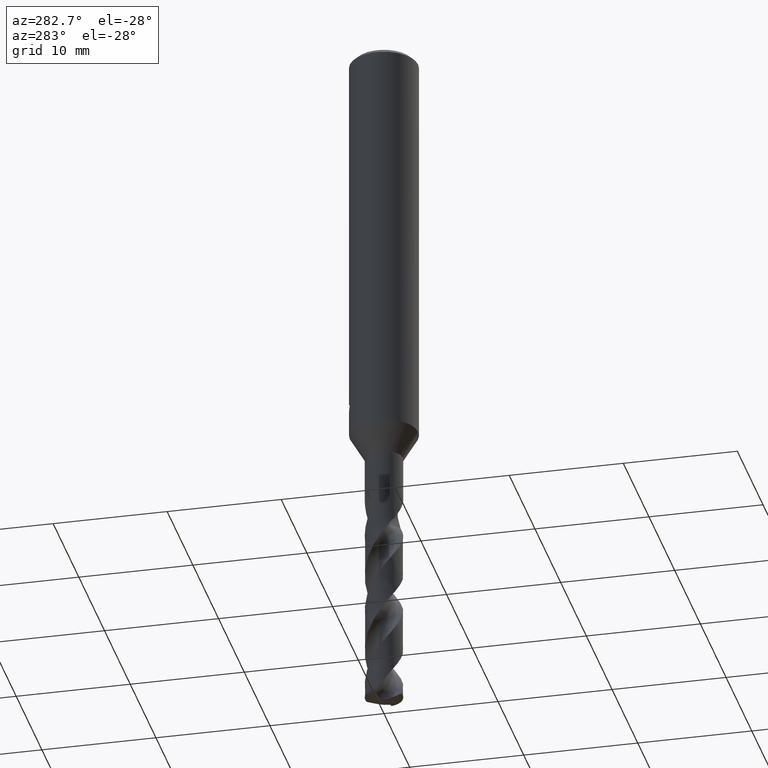
[diagram: clean part render]
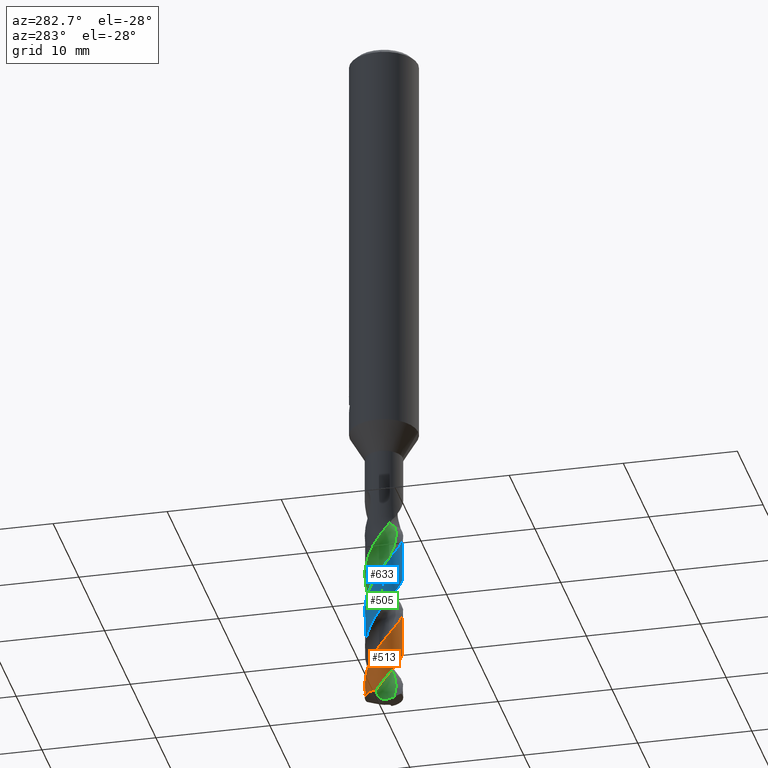
[diagram: same view with three faces highlighted in distinct colors, each labeled with its STEP entity id]
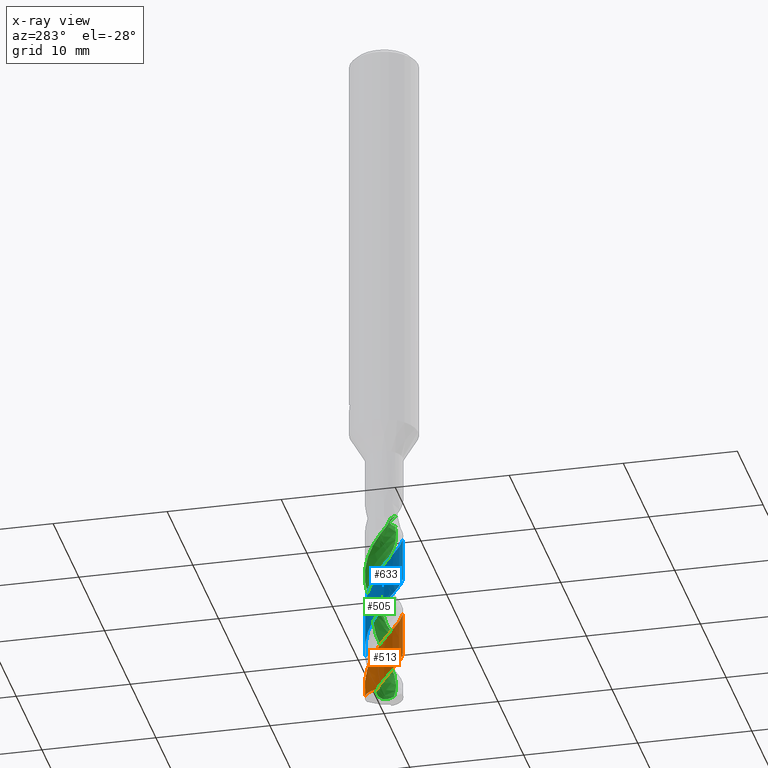
[diagram: x-ray of the same camera — body ghosted, the three highlighted faces saturated]
A machine part, auxiliary view with three faces highlighted in distinct colors.
The next image is the same camera in x-ray (body ghosted, the three faces saturated) — at least one of them is partly hidden behind the body in this view.
Their STEP definitions:

[orange] entity #513 — the highlighted conical surface has half-angle 0 deg.
#309=VERTEX_POINT('',#819);
#339=EDGE_CURVE('',#309,#423,#852,.T.);
#423=VERTEX_POINT('',#946);
#425=VERTEX_POINT('',#948);
#453=EDGE_CURVE('',#573,#757,#978,.T.);
#513=ADVANCED_FACE('',(#1046),#1047,.T.);
#529=EDGE_CURVE('',#573,#425,#1065,.T.);
#573=VERTEX_POINT('',#1114);
#671=EDGE_CURVE('',#423,#757,#1218,.T.);
#757=VERTEX_POINT('',#1309);
#763=EDGE_CURVE('',#425,#309,#1316,.T.);
#819=CARTESIAN_POINT('',(-4.29757238529856E-012,-1.64995948228063,-53.53923476112));
#852=B_SPLINE_CURVE_WITH_KNOTS('',3,(#1983,#1984,#1985,#1986,#1987,#1988,#1989,#1990,#1991,#1992,#1993,#1994,#1995,#1996,#1997,#1998,#1999,#2000,#2001,#2002,#2003,#2004,#2005,#2006,#2007,#2008,#2009,#2010,#2011,#2012,#2013,#2014,#2015,#2016,#2017,#2018,#2019,#2020,#2021,#2022,#2023,#2024,#2025,#2026,#2027,#2028,#2029,#2030,#2031,#2032,#2033,#2034,#2035,#2036,#2037,#2038,#2039,#2040,#2041,#2042,#2043,#2044,#2045,#2046,#2047,#2048,#2049,#2050,#2051,#2052,#2053,#2054,#2055,#2056,#2057,#2058,#2059,#2060,#2061,#2062,#2063,#2064,#2065,#2066,#2067,#2068,#2069,#2070,#2071,#2072,#2073,#2074,#2075,#2076,#2077,#2078),.UNSPECIFIED.,.F.,.F.,(4,2,2,2,2,2,2,2,2,2,2,2,2,2,2,2,2,2,2,2,2,2,2,2,2,2,2,2,2,2,2,2,2,2,2,2,2,2,2,2,2,2,2,2,2,2,2,4),(0.0,0.0700165623497992,0.100400821771222,0.117552978669846,0.127608380609091,0.349617333316838,0.41619752819465,0.457915672939033,0.496473863935403,0.547214202049622,0.658127612494924,0.705862693164858,0.835489133735537,0.907232766106796,0.968302841545072,0.998526717810259,1.06546504425116,1.94578151207064,2.09271465278354,2.50847442010473,2.97797359557852,3.80679059375761,4.37494109473815,5.11307460967204,5.77298387172185,6.68928809197674,6.80808210609517,7.67795932798041,8.5848889943836,9.05737084628214,9.87871690218857,10.3495337639685,11.2841425087653,11.7567890437276,12.7397886690961,13.2151735183789,13.8399944499678,14.7175140038209,14.9665239269621,15.9648504405574,16.5295470633208,17.3943693421963,17.6470507734527,18.62979068497,19.1608756776724,19.9706549312639,20.3814415592187,20.7960714352973),.UNSPECIFIED.);
#946=CARTESIAN_POINT('',(-9.64903236407528E-015,1.64999690101109,-60.7982623361812));
#948=CARTESIAN_POINT('',(-5.56564880314397E-013,-1.64997919865343,-57.3641024703559));
#978=CIRCLE('',#2722,1.65);
#1046=FACE_OUTER_BOUND('',#3529,.T.);
#1047=CONICAL_SURFACE('',#3530,1.64995,5.15478555160187E-006);
#1065=B_SPLINE_CURVE_WITH_KNOTS('',3,(#3673,#3674,#3675,#3676,#3677,#3678,#3679,#3680,#3681,#3682,#3683,#3684,#3685,#3686,#3687,#3688,#3689,#3690,#3691,#3692,#3693,#3694,#3695,#3696,#3697,#3698,#3699,#3700,#3701,#3702,#3703,#3704,#3705,#3706,#3707,#3708,#3709,#3710,#3711,#3712,#3713,#3714,#3715,#3716,#3717,#3718,#3719,#3720,#3721,#3722,#3723,#3724,#3725,#3726,#3727,#3728,#3729,#3730,#3731,#3732,#3733,#3734,#3735,#3736,#3737,#3738,#3739,#3740,#3741,#3742,#3743,#3744,#3745,#3746,#3747,#3748,#3749,#3750,#3751,#3752),.UNSPECIFIED.,.F.,.F.,(4,2,2,2,2,2,2,2,2,2,2,2,2,2,2,2,2,2,2,2,2,2,2,2,2,2,2,2,2,2,2,2,2,2,2,2,2,2,2,4),(0.0,0.936654168590701,1.53341847101532,1.82096909942437,2.22263054411962,2.77387093041088,3.73316041056545,4.20528015996942,4.85052500429398,5.93370910466652,6.11910520481942,7.20787945428481,7.61024288702898,8.1962060911429,9.24391561037399,9.65500218088401,10.5847428451121,11.0000485825015,11.9207724016093,12.347527747687,13.3305290457857,13.7034917992018,14.3174055845682,14.9344561027839,16.0374942137947,16.4024014950815,16.9459046809952,17.7136714483855,19.158643707242,19.659416950665,19.8424121654843,19.9605797826228,20.1051829639057,20.3058573077039,20.45498939836,20.5640584271276,20.680929651084,20.8641592525841,21.2535784283675,21.5619210214965),.UNSPECIFIED.);
#1114=CARTESIAN_POINT('',(-1.62487804019007,0.286829835456651,-61.3994491134608));
#1218=LINE('',#4510,#4511);
#1309=CARTESIAN_POINT('',(-2.02229084102014E-016,1.65,-61.3994491134608));
#1316=LINE('',#5212,#5213);
#1983=CARTESIAN_POINT('',(-1.14681600760072,1.18618108899032,-44.4998));
#1984=CARTESIAN_POINT('',(-1.13750862682632,1.19517973052821,-44.5192190428464));
#1985=CARTESIAN_POINT('',(-1.12806978546467,1.2040939114296,-44.5386112347089));
#1986=CARTESIAN_POINT('',(-1.11430898187815,1.21678315477534,-44.5663816012756));
#1987=CARTESIAN_POINT('',(-1.11011737870248,1.22060869164212,-44.5747760362152));
#1988=CARTESIAN_POINT('',(-1.10351211692982,1.22657464167352,-44.5878990948639));
#1989=CARTESIAN_POINT('',(-1.10111970700106,1.22872286090903,-44.592630977358));
#1990=CARTESIAN_POINT('',(-1.09730937912579,1.23212415266753,-44.6001330087247));
#1991=CARTESIAN_POINT('',(-1.09589794845401,1.23337972500408,-44.6029045253314));
#1992=CARTESIAN_POINT('',(-1.06324732227333,1.26232442280827,-44.6668457001763));
#1993=CARTESIAN_POINT('',(-1.0310397030118,1.28880942803083,-44.7262183253547));
#1994=CARTESIAN_POINT('',(-0.986409053266961,1.3226419903376,-44.8040964147521));
#1995=CARTESIAN_POINT('',(-0.975990346403756,1.33034967761952,-44.8219965061011));
#1996=CARTESIAN_POINT('',(-0.95882206976497,1.34273797027719,-44.8510991112348));
#1997=CARTESIAN_POINT('',(-0.952163588392702,1.34746804986686,-44.8622924940933));
#1998=CARTESIAN_POINT('',(-0.939260531790565,1.35649028981711,-44.8838251470141));
#1999=CARTESIAN_POINT('',(-0.933027760064585,1.36078501091133,-44.8941566399924));
#2000=CARTESIAN_POINT('',(-0.918510144681246,1.37064151898249,-44.9180828249204));
#2001=CARTESIAN_POINT('',(-0.910207662905227,1.37616911389452,-44.9316630680306));
#2002=CARTESIAN_POINT('',(-0.88359044790925,1.39354374339339,-44.9749526865775));
#2003=CARTESIAN_POINT('',(-0.865155719202576,1.40506076122222,-45.0045638014858));
#2004=CARTESIAN_POINT('',(-0.838566137500564,1.42095585961475,-45.0471612958671));
#2005=CARTESIAN_POINT('',(-0.830668557791967,1.42558671214997,-45.0598074240231));
#2006=CARTESIAN_POINT('',(-0.800858032089645,1.44273387154168,-45.1075510386967));
#2007=CARTESIAN_POINT('',(-0.778866044886938,1.45472062065157,-45.1427337628533));
#2008=CARTESIAN_POINT('',(-0.744467643622458,1.47247496716549,-45.197290632339));
#2009=CARTESIAN_POINT('',(-0.732138386210753,1.47864398441361,-45.2167541018939));
#2010=CARTESIAN_POINT('',(-0.70918164541812,1.48977325396469,-45.2527633217944));
#2011=CARTESIAN_POINT('',(-0.69856495751059,1.49478111671276,-45.2693265031001));
#2012=CARTESIAN_POINT('',(-0.682604910483545,1.50210198384984,-45.2940668532785));
#2013=CARTESIAN_POINT('',(-0.677305486085707,1.50449902950047,-45.3022558673711));
#2014=CARTESIAN_POINT('',(-0.660218349406237,1.51211920752487,-45.328571520319));
#2015=CARTESIAN_POINT('',(-0.648353977291718,1.51724463486475,-45.3467153874949));
#2016=CARTESIAN_POINT('',(-0.479520004580402,1.58783307881701,-45.6035272742557));
#2017=CARTESIAN_POINT('',(-0.313247880620025,1.62885144018189,-45.8395914040588));
#2018=CARTESIAN_POINT('',(-0.115126438970659,1.64614554242439,-46.1182024181453));
#2019=CARTESIAN_POINT('',(-0.0867357224805918,1.64788532605089,-46.1580636425876));
#2020=CARTESIAN_POINT('',(0.0220800733375192,1.65173492459591,-46.3107003846865));
#2021=CARTESIAN_POINT('',(0.10261671857269,1.64869607163725,-46.4233463970376));
#2022=CARTESIAN_POINT('',(0.273013554490918,1.6297180861069,-46.6633820302668));
#2023=CARTESIAN_POINT('',(0.362349388988187,1.61220532721681,-46.7903744626878));
#2024=CARTESIAN_POINT('',(0.604034544272601,1.54373401892617,-47.1426261246903));
#2025=CARTESIAN_POINT('',(0.751276262756507,1.47772035028593,-47.366182858032));
#2026=CARTESIAN_POINT('',(0.979636377919292,1.33218224980362,-47.7448127257994));
#2027=CARTESIAN_POINT('',(1.06623831872806,1.26391354316615,-47.8985061576136));
#2028=CARTESIAN_POINT('',(1.24807222892747,1.08856188726546,-48.2529961738444));
#2029=CARTESIAN_POINT('',(1.3376515995807,0.976442629974058,-48.4524114361144));
#2030=CARTESIAN_POINT('',(1.47792490328993,0.744571846673539,-48.8313355927592));
#2031=CARTESIAN_POINT('',(1.53111767652148,0.62790470225023,-49.0096181882428));
#2032=CARTESIAN_POINT('',(1.62470580097266,0.337708959586025,-49.4373119115828));
#2033=CARTESIAN_POINT('',(1.65161621979322,0.161204704336429,-49.6837883600023));
#2034=CARTESIAN_POINT('',(1.64963237702619,-0.0393487546067798,-49.9643446999691));
#2035=CARTESIAN_POINT('',(1.64892335734912,-0.0623447499025552,-49.9965322980052));
#2036=CARTESIAN_POINT('',(1.63902608207217,-0.253521437849674,-50.2646883115659));
#2037=CARTESIAN_POINT('',(1.60459417501994,-0.419563096455484,-50.5001647307957));
#2038=CARTESIAN_POINT('',(1.484018750422,-0.742244367410703,-50.9820478842066));
#2039=CARTESIAN_POINT('',(1.39658018932474,-0.895940138820733,-51.2264969068384));
#2040=CARTESIAN_POINT('',(1.22943964063026,-1.10416291946807,-51.6009246157982));
#2041=CARTESIAN_POINT('',(1.16631174827523,-1.17066015781184,-51.7288857074454));
#2042=CARTESIAN_POINT('',(0.979050220928587,-1.33759652112284,-52.0797691116111));
#2043=CARTESIAN_POINT('',(0.845554461021403,-1.42571133388454,-52.3013595330398));
#2044=CARTESIAN_POINT('',(0.619209232656714,-1.532068706214,-52.6521375785054));
#2045=CARTESIAN_POINT('',(0.533600143115776,-1.5639551984045,-52.7796939003591));
#2046=CARTESIAN_POINT('',(0.271259825544695,-1.63756189822219,-53.1608870956944));
#2047=CARTESIAN_POINT('',(0.0900413244247731,-1.65740414136352,-53.4126838506195));
#2048=CARTESIAN_POINT('',(-0.181960793450023,-1.64244696023074,-53.7946864565072));
#2049=CARTESIAN_POINT('',(-0.272816363682278,-1.62982937168734,-53.922693811637));
#2050=CARTESIAN_POINT('',(-0.548192475096097,-1.56786395217216,-54.3174779504336));
#2051=CARTESIAN_POINT('',(-0.725397903558065,-1.49412905884019,-54.5825679108563));
#2052=CARTESIAN_POINT('',(-0.963656424603707,-1.34247258347983,-54.9783877402852));
#2053=CARTESIAN_POINT('',(-1.0371032158065,-1.28658886121813,-55.107057089274));
#2054=CARTESIAN_POINT('',(-1.1955050788118,-1.14361323452585,-55.40541825147));
#2055=CARTESIAN_POINT('',(-1.27614803535686,-1.05283883041694,-55.5744190578395));
#2056=CARTESIAN_POINT('',(-1.44429362050782,-0.815638216781618,-55.9823002233621));
#2057=CARTESIAN_POINT('',(-1.52062512615643,-0.662620143112492,-56.2187211291496));
#2058=CARTESIAN_POINT('',(-1.58688639898898,-0.454466847904622,-56.524203792481));
#2059=CARTESIAN_POINT('',(-1.59949330636902,-0.407877517720927,-56.5916843469861));
#2060=CARTESIAN_POINT('',(-1.65231205662347,-0.172205895443204,-56.9302527254182));
#2061=CARTESIAN_POINT('',(-1.66115155056348,0.0226119574098097,-57.1995803514161));
#2062=CARTESIAN_POINT('',(-1.62171063311002,0.323250537636542,-57.6235327710724));
#2063=CARTESIAN_POINT('',(-1.59669528285983,0.430058500547106,-57.7764605376767));
#2064=CARTESIAN_POINT('',(-1.50722915086698,0.691901708882489,-58.1646322551609));
#2065=CARTESIAN_POINT('',(-1.42925790872094,0.84131265449172,-58.3977378917264));
#2066=CARTESIAN_POINT('',(-1.30098001439224,1.01602510628377,-58.7008143269322));
#2067=CARTESIAN_POINT('',(-1.27025627012433,1.05418187138471,-58.7692841460632));
#2068=CARTESIAN_POINT('',(-1.11205538988296,1.23370310927202,-59.1046827854054));
#2069=CARTESIAN_POINT('',(-0.962293275083424,1.35381491599149,-59.3700687596391));
#2070=CARTESIAN_POINT('',(-0.704937235161809,1.49537756776881,-59.7808142097316));
#2071=CARTESIAN_POINT('',(-0.610279313334325,1.53642896991399,-59.9246293493134));
#2072=CARTESIAN_POINT('',(-0.363431355163899,1.61709493799265,-60.2887948123844));
#2073=CARTESIAN_POINT('',(-0.208008843362423,1.64435966864957,-60.5074121968974));
#2074=CARTESIAN_POINT('',(0.028773826182045,1.65167161106976,-60.838514900912));
#2075=CARTESIAN_POINT('',(0.108406037410697,1.64835237641356,-60.9496490080606));
#2076=CARTESIAN_POINT('',(0.267176663896482,1.63020145332519,-61.1739829782303));
#2077=CARTESIAN_POINT('',(0.346152986130691,1.61527672439238,-61.2867365391658));
#2078=CARTESIAN_POINT('',(0.423727718483429,1.59466448527232,-61.3994491134607));
#2722=AXIS2_PLACEMENT_3D('',#5452,#5453,#5454);
#3529=EDGE_LOOP('',(#5545,#5546,#5547,#5548,#5549));
#3530=AXIS2_PLACEMENT_3D('',#5550,#5551,#5552);
#3673=CARTESIAN_POINT('',(-1.62487804019007,0.286829835456651,-61.3994491134608));
#3674=CARTESIAN_POINT('',(-1.65658207327476,0.10722040816341,-61.1460414921686));
#3675=CARTESIAN_POINT('',(-1.65816360091604,-0.0756871099392041,-60.8900208856617));
#3676=CARTESIAN_POINT('',(-1.61247304465644,-0.368383610417381,-60.4743910776431));
#3677=CARTESIAN_POINT('',(-1.58278070708708,-0.480272241920616,-60.3141743783466));
#3678=CARTESIAN_POINT('',(-1.5216746017873,-0.640382065816053,-60.0749821855219));
#3679=CARTESIAN_POINT('',(-1.49922303372301,-0.691292346113393,-59.9972952206045));
#3680=CARTESIAN_POINT('',(-1.43950767209933,-0.810121954850723,-59.8104617289039));
#3681=CARTESIAN_POINT('',(-1.39980786749593,-0.876960192948621,-59.7007709743299));
#3682=CARTESIAN_POINT('',(-1.29458315121534,-1.02855068400825,-59.4421186646543));
#3683=CARTESIAN_POINT('',(-1.22525932706739,-1.11025776617253,-59.2936322563048));
#3684=CARTESIAN_POINT('',(-1.01453906949032,-1.31449586108677,-58.8844429083165));
#3685=CARTESIAN_POINT('',(-0.85992953763041,-1.42042611777673,-58.6226768679746));
#3686=CARTESIAN_POINT('',(-0.607745599673416,-1.53671109236831,-58.2345891552087));
#3687=CARTESIAN_POINT('',(-0.521489494866867,-1.56808688485634,-58.1073098507256));
#3688=CARTESIAN_POINT('',(-0.31213411923689,-1.62502560826292,-57.804556568243));
#3689=CARTESIAN_POINT('',(-0.188200414045065,-1.64393480522184,-57.6284549272345));
#3690=CARTESIAN_POINT('',(0.145103927313678,-1.65682461580503,-57.1599928006804));
#3691=CARTESIAN_POINT('',(0.353180639810749,-1.62514377049107,-56.8744795723494));
#3692=CARTESIAN_POINT('',(0.58324465302738,-1.54386347660372,-56.530576127676));
#3693=CARTESIAN_POINT('',(0.616456657212126,-1.53090812013897,-56.4801861582192));
#3694=CARTESIAN_POINT('',(0.842687903843435,-1.43405278949682,-56.1337965480981));
#3695=CARTESIAN_POINT('',(1.0182743516452,-1.31518707860344,-55.8460911111234));
#3696=CARTESIAN_POINT('',(1.22182469750043,-1.11156589611614,-55.4414681054928));
#3697=CARTESIAN_POINT('',(1.27286621678875,-1.05274987963731,-55.3314604222269));
#3698=CARTESIAN_POINT('',(1.38777553456867,-0.89964048232021,-55.0629553645908));
#3699=CARTESIAN_POINT('',(1.44646356463427,-0.801937819939829,-54.9051561806754));
#3700=CARTESIAN_POINT('',(1.58093782274665,-0.514283577732301,-54.4623174185537));
#3701=CARTESIAN_POINT('',(1.632243888023,-0.315608167758886,-54.1764749665306));
#3702=CARTESIAN_POINT('',(1.65156803387037,-0.0327866827453422,-53.7809427524557));
#3703=CARTESIAN_POINT('',(1.65121635446919,0.0471772695489628,-53.6699272268224));
#3704=CARTESIAN_POINT('',(1.6312093280119,0.306782183261764,-53.3062843990578));
#3705=CARTESIAN_POINT('',(1.58793303123155,0.483178744663682,-53.0522621942332));
#3706=CARTESIAN_POINT('',(1.48509160163346,0.723440711617153,-52.6876002234735));
#3707=CARTESIAN_POINT('',(1.44794792785358,0.795172413086362,-52.5754634535449));
#3708=CARTESIAN_POINT('',(1.31212567099079,1.01618381685704,-52.2131488861463));
#3709=CARTESIAN_POINT('',(1.19449300412959,1.15218109795321,-51.9615749397393));
#3710=CARTESIAN_POINT('',(0.993504230419287,1.31990765509521,-51.5962701969243));
#3711=CARTESIAN_POINT('',(0.925955713253545,1.36813795823549,-51.4810743487344));
#3712=CARTESIAN_POINT('',(0.69188825638225,1.50997857412902,-51.0987913627216));
#3713=CARTESIAN_POINT('',(0.512815347795011,1.5798200531417,-50.8305343800899));
#3714=CARTESIAN_POINT('',(0.254491957343972,1.63180905435385,-50.4630758005745));
#3715=CARTESIAN_POINT('',(0.18261640434617,1.64140289392285,-50.3623253593759));
#3716=CARTESIAN_POINT('',(-0.00849529101303213,1.65421674054172,-50.094732545716));
#3717=CARTESIAN_POINT('',(-0.127568525941061,1.64927646008757,-49.9269082739965));
#3718=CARTESIAN_POINT('',(-0.362871370725628,1.61395462334916,-49.5930664338491));
#3719=CARTESIAN_POINT('',(-0.478736817790776,1.58348752139826,-49.4273176881994));
#3720=CARTESIAN_POINT('',(-0.790279824752404,1.46407748437211,-48.9618949287623));
#3721=CARTESIAN_POINT('',(-0.97317573918499,1.34944800415988,-48.6618749623332));
#3722=CARTESIAN_POINT('',(-1.180825434898,1.1545302282999,-48.2648129652528));
#3723=CARTESIAN_POINT('',(-1.22923238986385,1.1028413960986,-48.1664056874251));
#3724=CARTESIAN_POINT('',(-1.34102941005459,0.966951438749034,-47.9205062646428));
#3725=CARTESIAN_POINT('',(-1.39977159111961,0.879685794628004,-47.7722677240323));
#3726=CARTESIAN_POINT('',(-1.5202541427323,0.65796597707396,-47.4174057071236));
#3727=CARTESIAN_POINT('',(-1.57319846436421,0.518989899804332,-47.2125110025478));
#3728=CARTESIAN_POINT('',(-1.67029424788998,0.102235287532852,-46.615758970866));
#3729=CARTESIAN_POINT('',(-1.66348275421466,-0.18129437375609,-46.2272971783294));
#3730=CARTESIAN_POINT('',(-1.56111735634842,-0.542669209453535,-45.7021730647743));
#3731=CARTESIAN_POINT('',(-1.5264107912115,-0.633968981191171,-45.5658256526611));
#3732=CARTESIAN_POINT('',(-1.46780677599235,-0.754357257286932,-45.3819611352735));
#3733=CARTESIAN_POINT('',(-1.45284006875582,-0.782510707761524,-45.3388707855898));
#3734=CARTESIAN_POINT('',(-1.42948054330017,-0.824112569834871,-45.2734362510309));
#3735=CARTESIAN_POINT('',(-1.42015044683518,-0.840076969810659,-45.2476178992897));
#3736=CARTESIAN_POINT('',(-1.39915812493708,-0.874686803130782,-45.1897250566365));
#3737=CARTESIAN_POINT('',(-1.38745899668344,-0.893102821976583,-45.1575933857675));
#3738=CARTESIAN_POINT('',(-1.35945337455932,-0.935402724239059,-45.0798825559833));
#3739=CARTESIAN_POINT('',(-1.34935257655362,-0.949647161744774,-45.0504238820891));
#3740=CARTESIAN_POINT('',(-1.33000158752677,-0.976481290897003,-44.9975381674368));
#3741=CARTESIAN_POINT('',(-1.32144694660766,-0.988036039501888,-44.9752253612181));
#3742=CARTESIAN_POINT('',(-1.30600585065636,-1.00830776858548,-44.9368861077269));
#3743=CARTESIAN_POINT('',(-1.29930247863204,-1.01693463852454,-44.9208159259238));
#3744=CARTESIAN_POINT('',(-1.28500355425303,-1.03495244530709,-44.8877479169504));
#3745=CARTESIAN_POINT('',(-1.2773899225972,-1.04433945128034,-44.8707924754173));
#3746=CARTESIAN_POINT('',(-1.25723243495655,-1.06862342158622,-44.8275921314833));
#3747=CARTESIAN_POINT('',(-1.24437679708192,-1.08358337520245,-44.8016095926763));
#3748=CARTESIAN_POINT('',(-1.20229455776425,-1.1307302846667,-44.7214476439231));
#3749=CARTESIAN_POINT('',(-1.17118509274619,-1.16307550200536,-44.6689345469071));
#3750=CARTESIAN_POINT('',(-1.11024049855844,-1.22104935105427,-44.5774105171888));
#3751=CARTESIAN_POINT('',(-1.08167877652874,-1.24648696974988,-44.5381534437774));
#3752=CARTESIAN_POINT('',(-1.05138084188125,-1.27153877506452,-44.4998));
#4510=CARTESIAN_POINT('',(-2.02222961070245E-016,1.64995,-51.6997245567304));
#4511=VECTOR('',#5724,1.0);
#5212=CARTESIAN_POINT('',(2.01884889627602E-016,-1.64995,-51.6997245567304));
#5213=VECTOR('',#5816,1.0);
#5452=CARTESIAN_POINT('',(0.0,0.0,-61.3994491134608));
#5453=DIRECTION('',(0.0,0.0,-1.0));
#5454=DIRECTION('',(0.0,1.0,0.0));
#5545=ORIENTED_EDGE('',*,*,#671,.T.);
#5546=ORIENTED_EDGE('',*,*,#453,.F.);
#5547=ORIENTED_EDGE('',*,*,#529,.T.);
#5548=ORIENTED_EDGE('',*,*,#763,.T.);
#5549=ORIENTED_EDGE('',*,*,#339,.T.);
#5550=CARTESIAN_POINT('',(0.0,0.0,-51.6997245567304));
#5551=DIRECTION('',(0.0,-0.0,-1.0));
#5552=DIRECTION('',(0.0,1.0,0.0));
#5724=DIRECTION('',(-6.31258313905548E-022,5.15478555157904E-006,-0.999999999986714));
#5816=DIRECTION('',(-6.31258313905548E-022,5.15478555157904E-006,0.999999999986714));

[blue] entity #633 — the highlighted conical surface has half-angle 0 deg.
#313=VERTEX_POINT('',#823);
#349=VERTEX_POINT('',#865);
#407=VERTEX_POINT('',#928);
#507=VERTEX_POINT('',#1039);
#519=EDGE_CURVE('',#313,#507,#1054,.T.);
#619=EDGE_CURVE('',#507,#407,#1162,.T.);
#633=ADVANCED_FACE('',(#1176),#1177,.T.);
#707=EDGE_CURVE('',#407,#349,#1256,.T.);
#753=EDGE_CURVE('',#349,#313,#1305,.T.);
#823=CARTESIAN_POINT('',(5.56564012975418E-013,1.64997919865343,-57.3641024703559));
#865=CARTESIAN_POINT('',(4.29046609060198E-012,1.64995948228063,-53.53923476112));
#928=CARTESIAN_POINT('',(8.98202662783642E-015,-1.6499220608893,-46.2796909936592));
#1039=CARTESIAN_POINT('',(-7.78807126661865E-011,-1.6499417873786,-50.1065212476205));
#1054=B_SPLINE_CURVE_WITH_KNOTS('',3,(#3539,#3540,#3541,#3542,#3543,#3544,#3545,#3546,#3547,#3548,#3549,#3550,#3551,#3552,#3553,#3554,#3555,#3556,#3557,#3558,#3559,#3560,#3561,#3562,#3563,#3564,#3565,#3566,#3567,#3568,#3569,#3570,#3571,#3572,#3573,#3574,#3575,#3576,#3577,#3578,#3579,#3580,#3581,#3582,#3583,#3584,#3585,#3586,#3587,#3588,#3589,#3590,#3591,#3592,#3593,#3594,#3595,#3596,#3597,#3598,#3599,#3600,#3601,#3602,#3603,#3604,#3605,#3606,#3607,#3608,#3609,#3610,#3611,#3612,#3613,#3614,#3615,#3616,#3617,#3618),.UNSPECIFIED.,.F.,.F.,(4,2,2,2,2,2,2,2,2,2,2,2,2,2,2,2,2,2,2,2,2,2,2,2,2,2,2,2,2,2,2,2,2,2,2,2,2,2,2,4),(0.0,0.936654168586762,1.53341847104594,1.82096909886645,2.2226305461249,2.77387093033404,3.73316041026173,4.20528015975079,4.85052500327551,5.93370909760259,6.11910519958164,7.2078794396615,7.61024288305795,8.19620611247815,9.24391569499695,9.65500213465629,10.5847431188124,11.0000484096061,11.9207733130618,12.3475270621881,13.3305025997111,13.7035132433774,14.3173750723524,14.934613449482,16.0382461450941,16.4018692626012,16.9471828801507,17.7145738517023,19.1588428700704,19.6589448764659,19.8421891905795,19.960592986812,20.1053139887389,20.3067832593634,20.4597893258784,20.5713510340657,20.6905836489188,20.8768574539026,21.2717998342618,21.5919762557053),.UNSPECIFIED.);
#1162=LINE('',#4197,#4198);
#1176=FACE_OUTER_BOUND('',#4239,.T.);
#1177=CONICAL_SURFACE('',#4240,1.64995,5.15478555160187E-006);
#1256=B_SPLINE_CURVE_WITH_KNOTS('',3,(#4683,#4684,#4685,#4686,#4687,#4688,#4689,#4690,#4691,#4692,#4693,#4694,#4695,#4696,#4697,#4698,#4699,#4700,#4701,#4702,#4703,#4704,#4705,#4706,#4707,#4708,#4709,#4710,#4711,#4712,#4713,#4714,#4715,#4716,#4717,#4718,#4719,#4720,#4721,#4722,#4723,#4724,#4725,#4726,#4727,#4728,#4729,#4730,#4731,#4732,#4733,#4734,#4735,#4736,#4737,#4738,#4739,#4740,#4741,#4742,#4743,#4744,#4745,#4746,#4747,#4748,#4749,#4750,#4751,#4752,#4753,#4754,#4755,#4756,#4757,#4758,#4759,#4760,#4761,#4762,#4763,#4764,#4765,#4766,#4767,#4768,#4769,#4770,#4771,#4772,#4773,#4774,#4775,#4776,#4777,#4778),.UNSPECIFIED.,.F.,.F.,(4,2,2,2,2,2,2,2,2,2,2,2,2,2,2,2,2,2,2,2,2,2,2,2,2,2,2,2,2,2,2,2,2,2,2,2,2,2,2,2,2,2,2,2,2,2,2,4),(0.0,0.0700165623343754,0.100400821763229,0.117552978628877,0.127608380480933,0.349617336107406,0.416197531832905,0.457915677104092,0.496473868589729,0.547214207343266,0.658127619154613,0.705862700406503,0.835489142649944,0.907232775909923,0.968302852122042,0.998526728770209,1.06546505606927,1.94578153516678,2.09271467999632,2.50847444271411,2.97797362549069,3.80679061459364,4.37494114095843,5.11307464484455,5.77298396021099,6.68928819330114,6.8080822068127,7.67795946110345,8.58488902586706,9.05737088163509,9.87871713153003,10.3495340025563,11.2841427395257,11.7567892830663,12.7397889199663,13.2151737772738,13.8399946088566,14.7175141303396,14.9665240756723,15.9648505314369,16.5295472620133,17.3943695224677,17.6470509704465,18.6297908551764,19.1608758747066,19.970655159701,20.3814418042088,20.7960716962427),.UNSPECIFIED.);
#1305=LINE('',#5197,#5198);
#3539=CARTESIAN_POINT('',(1.62487804019006,-0.286829835456653,-61.3994491134608));
#3540=CARTESIAN_POINT('',(1.65658207327462,-0.107220408164166,-61.1460414921697));
#3541=CARTESIAN_POINT('',(1.65816360091664,0.0756871099353059,-60.8900208856673));
#3542=CARTESIAN_POINT('',(1.61247304465494,0.368383610426943,-60.4743910776295));
#3543=CARTESIAN_POINT('',(1.58278070708295,0.480272241936264,-60.3141743783242));
#3544=CARTESIAN_POINT('',(1.52167460181808,0.640382065733066,-60.0749821856454));
#3545=CARTESIAN_POINT('',(1.49922303380443,0.691292345927968,-59.9972952208871));
#3546=CARTESIAN_POINT('',(1.43950767202861,0.81012195502414,-59.8104617286436));
#3547=CARTESIAN_POINT('',(1.39980786715271,0.876960193540786,-59.7007709733688));
#3548=CARTESIAN_POINT('',(1.29458315070579,1.02855068460821,-59.4421186635631));
#3549=CARTESIAN_POINT('',(1.22525932678693,1.1102577664433,-59.2936322557612));
#3550=CARTESIAN_POINT('',(1.01453906952787,1.31449586105224,-58.8844429083877));
#3551=CARTESIAN_POINT('',(0.859929537709613,1.42042611772249,-58.6226768681079));
#3552=CARTESIAN_POINT('',(0.607745599793018,1.53671109232187,-58.2345891553871));
#3553=CARTESIAN_POINT('',(0.521489494977334,1.56808688482034,-58.1073098508873));
#3554=CARTESIAN_POINT('',(0.312134119493711,1.6250256082012,-57.8045565686118));
#3555=CARTESIAN_POINT('',(0.188200414465352,1.6439348051611,-57.6284549278322));
#3556=CARTESIAN_POINT('',(-0.145103925535765,1.65682461581095,-57.1599928031677));
#3557=CARTESIAN_POINT('',(-0.353180636900399,1.62514377097792,-56.8744795763623));
#3558=CARTESIAN_POINT('',(-0.58324464958027,1.54386347791423,-56.5305761328866));
#3559=CARTESIAN_POINT('',(-0.616456654101999,1.53090812139871,-56.4801861629487));
#3560=CARTESIAN_POINT('',(-0.842687899326346,1.43405279185225,-56.1337965552052));
#3561=CARTESIAN_POINT('',(-1.01827434587697,1.3151870827597,-55.8460911208258));
#3562=CARTESIAN_POINT('',(-1.22182469288835,1.11156590132628,-55.4414681153127));
#3563=CARTESIAN_POINT('',(-1.27286621364904,1.05274988357641,-55.3314604293032));
#3564=CARTESIAN_POINT('',(-1.38777553570095,0.899640481167397,-55.0629553623239));
#3565=CARTESIAN_POINT('',(-1.44646356797903,0.80193781457696,-54.9051561719494));
#3566=CARTESIAN_POINT('',(-1.5809378312313,0.51428355637887,-54.4623173865208));
#3567=CARTESIAN_POINT('',(-1.63224389613396,0.315608133579745,-54.1764749179343));
#3568=CARTESIAN_POINT('',(-1.65156803305786,0.0327866614703314,-53.7809427230144));
#3569=CARTESIAN_POINT('',(-1.6512163533604,-0.0471772652018055,-53.6699272326614));
#3570=CARTESIAN_POINT('',(-1.63120932878697,-0.306782215575819,-53.30628435436));
#3571=CARTESIAN_POINT('',(-1.58793301024199,-0.483178836871139,-53.0522620636947));
#3572=CARTESIAN_POINT('',(-1.48509156775446,-0.72344077148257,-52.6876001284079));
#3573=CARTESIAN_POINT('',(-1.44794793293988,-0.795172395032166,-52.575463478405));
#3574=CARTESIAN_POINT('',(-1.31212562526013,-1.0161839129475,-52.2131487391226));
#3575=CARTESIAN_POINT('',(-1.19449280028915,-1.15218134208896,-51.9615745004984));
#3576=CARTESIAN_POINT('',(-0.99350404895643,-1.31990777221463,-51.5962698989756));
#3577=CARTESIAN_POINT('',(-0.925955783232397,-1.368137892129,-51.4810744788068));
#3578=CARTESIAN_POINT('',(-0.691892901988318,-1.50997581356756,-51.0987989136542));
#3579=CARTESIAN_POINT('',(-0.512825110682214,-1.57981627696339,-50.8305488186462));
#3580=CARTESIAN_POINT('',(-0.254498008334585,-1.63180852381072,-50.4630841988646));
#3581=CARTESIAN_POINT('',(-0.182613224466418,-1.64140365690792,-50.3623208950818));
#3582=CARTESIAN_POINT('',(0.0084977379548741,-1.65421599971517,-50.0947291390451));
#3583=CARTESIAN_POINT('',(0.127560800175404,-1.649276328643,-49.9269190891582));
#3584=CARTESIAN_POINT('',(0.362889824270938,-1.61395315133113,-49.5930403991606));
#3585=CARTESIAN_POINT('',(0.478789933810833,-1.58347420237154,-49.4272420986523));
#3586=CARTESIAN_POINT('',(0.790467622627945,-1.46399290975303,-48.9616076418903));
#3587=CARTESIAN_POINT('',(0.973445726414683,-1.34927153983296,-48.6614307886449));
#3588=CARTESIAN_POINT('',(1.18094665606979,-1.15439097664039,-48.2645573209437));
#3589=CARTESIAN_POINT('',(1.2291811394619,-1.10288262049473,-48.1664946301723));
#3590=CARTESIAN_POINT('',(1.34106914324009,-0.966934625255119,-47.9204544062245));
#3591=CARTESIAN_POINT('',(1.39999701438839,-0.879368992230258,-47.7717200013726));
#3592=CARTESIAN_POINT('',(1.52051677425807,-0.657343871089464,-47.4164676223962));
#3593=CARTESIAN_POINT('',(1.57338231436148,-0.518411968810424,-47.2116699745685));
#3594=CARTESIAN_POINT('',(1.67029719092358,-0.101824088368086,-46.6151956270819));
#3595=CARTESIAN_POINT('',(1.66343133046767,0.181566712341043,-46.2269098798152));
#3596=CARTESIAN_POINT('',(1.56110390733988,0.542685214540107,-45.7021468802985));
#3597=CARTESIAN_POINT('',(1.5264460844637,0.633863528338495,-45.5659813561979));
#3598=CARTESIAN_POINT('',(1.46789653618709,0.754184883927497,-45.3822263461762));
#3599=CARTESIAN_POINT('',(1.45291848474056,0.782364412228816,-45.3390936573095));
#3600=CARTESIAN_POINT('',(1.4295727959185,0.823952530390143,-45.2736926088289));
#3601=CARTESIAN_POINT('',(1.42024442437647,0.839918092685937,-45.2478776518657));
#3602=CARTESIAN_POINT('',(1.39926910161305,0.874508605361932,-45.1900304064127));
#3603=CARTESIAN_POINT('',(1.38758545339896,0.892905813358674,-45.1579415761842));
#3604=CARTESIAN_POINT('',(1.3595645243679,0.93524311959136,-45.0801947051655));
#3605=CARTESIAN_POINT('',(1.34939299523178,0.949582943072563,-45.0505625589819));
#3606=CARTESIAN_POINT('',(1.33022046001592,0.976183824194167,-44.9981154638587));
#3607=CARTESIAN_POINT('',(1.3216380506097,0.987781200128767,-44.9757129043523));
#3608=CARTESIAN_POINT('',(1.30616394151971,1.00810303944741,-44.9372693268017));
#3609=CARTESIAN_POINT('',(1.29945790983013,1.01673609582441,-44.9211838440674));
#3610=CARTESIAN_POINT('',(1.28517203613118,1.03474295525676,-44.8881286965301));
#3611=CARTESIAN_POINT('',(1.27757522335037,1.04411246921925,-44.8712007336502));
#3612=CARTESIAN_POINT('',(1.25750644048045,1.06829905633419,-44.8281623368471));
#3613=CARTESIAN_POINT('',(1.24472761361953,1.08317820683617,-44.8023103539485));
#3614=CARTESIAN_POINT('',(1.20297428262471,1.12999386876832,-44.7226751650846));
#3615=CARTESIAN_POINT('',(1.1721478038929,1.16208899974748,-44.6705288190655));
#3616=CARTESIAN_POINT('',(1.11115471918479,1.22023461896787,-44.5786681071684));
#3617=CARTESIAN_POINT('',(1.08216462799811,1.24608524413511,-44.5387684717399));
#3618=CARTESIAN_POINT('',(1.05138084188125,1.27153877506452,-44.4998));
#4197=CARTESIAN_POINT('',(2.00488283111587E-016,-1.64995,-51.6997245567304));
#4198=VECTOR('',#5675,1.0);
#4239=EDGE_LOOP('',(#5681,#5682,#5683,#5684));
#4240=AXIS2_PLACEMENT_3D('',#5685,#5686,#5687);
#4683=CARTESIAN_POINT('',(1.14681600760072,-1.18618108899032,-44.4998));
#4684=CARTESIAN_POINT('',(1.13750862682837,-1.19517973052623,-44.5192190428421));
#4685=CARTESIAN_POINT('',(1.12806978546625,-1.20409391142816,-44.5386112347057));
#4686=CARTESIAN_POINT('',(1.11430898187551,-1.21678315477779,-44.566381601281));
#4687=CARTESIAN_POINT('',(1.1101173787028,-1.22060869164181,-44.5747760362145));
#4688=CARTESIAN_POINT('',(1.1035121169387,-1.22657464166551,-44.5878990948462));
#4689=CARTESIAN_POINT('',(1.10111970700856,-1.22872286090233,-44.5926309773432));
#4690=CARTESIAN_POINT('',(1.09730937913844,-1.23212415265626,-44.6001330086998));
#4691=CARTESIAN_POINT('',(1.09589794849712,-1.23337972496571,-44.6029045252467));
#4692=CARTESIAN_POINT('',(1.06324732232362,-1.26232442276699,-44.6668457000834));
#4693=CARTESIAN_POINT('',(1.03103970305022,-1.2888094280011,-44.7262183252867));
#4694=CARTESIAN_POINT('',(0.986409053278538,-1.32264199032899,-44.8040964147321));
#4695=CARTESIAN_POINT('',(0.975990346413532,-1.33034967761237,-44.8219965060844));
#4696=CARTESIAN_POINT('',(0.958822069771713,-1.34273797027238,-44.8510991112234));
#4697=CARTESIAN_POINT('',(0.952163588397905,-1.34746804986317,-44.8622924940846));
#4698=CARTESIAN_POINT('',(0.939260531796804,-1.35649028981278,-44.8838251470037));
#4699=CARTESIAN_POINT('',(0.933027760071083,-1.36078501090686,-44.8941566399816));
#4700=CARTESIAN_POINT('',(0.918510144688669,-1.37064151897749,-44.9180828249082));
#4701=CARTESIAN_POINT('',(0.910207662914501,-1.37616911388836,-44.9316630680155));
#4702=CARTESIAN_POINT('',(0.883590447928017,-1.39354374338133,-44.9749526865471));
#4703=CARTESIAN_POINT('',(0.865155719228873,-1.40506076120591,-45.0045638014435));
#4704=CARTESIAN_POINT('',(0.838566137537155,-1.42095585959312,-45.0471612958084));
#4705=CARTESIAN_POINT('',(0.830668557832477,-1.42558671212634,-45.0598074239582));
#4706=CARTESIAN_POINT('',(0.800858032127694,-1.44273387152068,-45.1075510386358));
#4707=CARTESIAN_POINT('',(0.778866044928719,-1.45472062062964,-45.1427337627866));
#4708=CARTESIAN_POINT('',(0.744467643635192,-1.47247496715912,-45.1972906323188));
#4709=CARTESIAN_POINT('',(0.732138386222074,-1.47864398440799,-45.2167541018761));
#4710=CARTESIAN_POINT('',(0.709181645431036,-1.48977325395856,-45.2527633217743));
#4711=CARTESIAN_POINT('',(0.6985649575242,-1.49478111670639,-45.269326503079));
#4712=CARTESIAN_POINT('',(0.682604910497931,-1.50210198384329,-45.2940668532563));
#4713=CARTESIAN_POINT('',(0.677305486099277,-1.50449902949437,-45.3022558673502));
#4714=CARTESIAN_POINT('',(0.66021834941523,-1.51211920752098,-45.3285715203053));
#4715=CARTESIAN_POINT('',(0.648353977297355,-1.51724463486232,-45.3467153874862));
#4716=CARTESIAN_POINT('',(0.47952000458946,-1.5878330788139,-45.6035272742425));
#4717=CARTESIAN_POINT('',(0.313247880633111,-1.62885144017906,-45.8395914040402));
#4718=CARTESIAN_POINT('',(0.115126438556458,-1.64614554246082,-46.1182024187278));
#4719=CARTESIAN_POINT('',(0.0867357216344396,-1.64788532610289,-46.1580636437756));
#4720=CARTESIAN_POINT('',(-0.0220800726968522,-1.65173492451082,-46.3107003837848));
#4721=CARTESIAN_POINT('',(-0.102616716003999,-1.64869607170303,-46.4233463934503));
#4722=CARTESIAN_POINT('',(-0.273013550303856,-1.62971808682202,-46.6633820243335));
#4723=CARTESIAN_POINT('',(-0.362349385088247,-1.61220532810731,-46.7903744570864));
#4724=CARTESIAN_POINT('',(-0.604034537099931,-1.5437340213367,-47.1426261140902));
#4725=CARTESIAN_POINT('',(-0.751276252426432,-1.47772035512285,-47.3661828422206));
#4726=CARTESIAN_POINT('',(-0.979636368666938,-1.33218225689762,-47.7448127095564));
#4727=CARTESIAN_POINT('',(-1.06623831265866,-1.26391354859082,-47.8985061461983));
#4728=CARTESIAN_POINT('',(-1.24807222302083,-1.08856189351805,-48.2529961617872));
#4729=CARTESIAN_POINT('',(-1.33765159188236,-0.976442639937571,-48.4524114186092));
#4730=CARTESIAN_POINT('',(-1.47792490035181,-0.744571853999343,-48.8313355818805));
#4731=CARTESIAN_POINT('',(-1.53111767747201,-0.627904701698438,-49.0096181893922));
#4732=CARTESIAN_POINT('',(-1.62470580298635,-0.337708950015681,-49.4373119252209));
#4733=CARTESIAN_POINT('',(-1.65161622078634,-0.161204694390233,-49.6837883738781));
#4734=CARTESIAN_POINT('',(-1.64963237678845,0.0393487643347316,-49.9643447135826));
#4735=CARTESIAN_POINT('',(-1.64892335699138,0.0623447592124005,-49.9965323110485));
#4736=CARTESIAN_POINT('',(-1.63902608049358,0.253521450770112,-50.264688329801));
#4737=CARTESIAN_POINT('',(-1.60459417108757,0.41956311315364,-50.5001647546413));
#4738=CARTESIAN_POINT('',(-1.48401874859431,0.742244365864481,-50.9820478830349));
#4739=CARTESIAN_POINT('',(-1.39658019964686,0.895940118424558,-51.2264968753932));
#4740=CARTESIAN_POINT('',(-1.2294396705864,1.10416288607539,-51.6009245530259));
#4741=CARTESIAN_POINT('',(-1.16631178035606,1.17066012581465,-51.7288856441317));
#4742=CARTESIAN_POINT('',(-0.979050231444741,1.33759651765574,-52.0797690974724));
#4743=CARTESIAN_POINT('',(-0.845554441016224,1.42571134971072,-52.3013595679485));
#4744=CARTESIAN_POINT('',(-0.619209176031271,1.5320687291382,-52.6521376640216));
#4745=CARTESIAN_POINT('',(-0.53360008470505,1.56395521837149,-52.7796939866505));
#4746=CARTESIAN_POINT('',(-0.271259767392519,1.63756190743521,-53.1608871773779));
#4747=CARTESIAN_POINT('',(-0.0900412694467177,1.65740414393519,-53.4126839274975));
#4748=CARTESIAN_POINT('',(0.181960844666781,1.64244695458495,-53.7946865286053));
#4749=CARTESIAN_POINT('',(0.272816415001038,1.62982936312553,-53.9226938843352));
#4750=CARTESIAN_POINT('',(0.548192524749506,1.5678639347889,-54.3174780234339));
#4751=CARTESIAN_POINT('',(0.725397950707995,1.49412903592913,-54.5825679839814));
#4752=CARTESIAN_POINT('',(0.963656467182576,1.34247255294349,-54.9783878135389));
#4753=CARTESIAN_POINT('',(1.03710325691357,1.28658882810937,-55.107057162974));
#4754=CARTESIAN_POINT('',(1.19550510004199,1.14361321011235,-55.4054182963586));
#4755=CARTESIAN_POINT('',(1.2761480413585,1.05283882073935,-55.5744190737813));
#4756=CARTESIAN_POINT('',(1.44429361088632,0.815638232055547,-55.9823001980799));
#4757=CARTESIAN_POINT('',(1.52062511475116,0.662620167115634,-56.2187210923739));
#4758=CARTESIAN_POINT('',(1.58688639052669,0.454466877843726,-56.5242037489823));
#4759=CARTESIAN_POINT('',(1.59949329969686,0.407877544321594,-56.5916843085758));
#4760=CARTESIAN_POINT('',(1.65231205116936,0.172205932487118,-56.9302526729841));
#4761=CARTESIAN_POINT('',(1.66115154966839,-0.0226119062004858,-57.1995802805969));
#4762=CARTESIAN_POINT('',(1.62171064316747,-0.323250493799007,-57.6235327084649));
#4763=CARTESIAN_POINT('',(1.59669529070189,-0.430058476387474,-57.7764605020467));
#4764=CARTESIAN_POINT('',(1.50722915516927,-0.691901698140901,-58.1646322389526));
#4765=CARTESIAN_POINT('',(1.42925791698328,-0.841312639328277,-58.3977378678242));
#4766=CARTESIAN_POINT('',(1.30098002684962,-1.0160250904595,-58.7008142987798));
#4767=CARTESIAN_POINT('',(1.27025628136153,-1.05418185796661,-58.7692841215546));
#4768=CARTESIAN_POINT('',(1.11205540596036,-1.23370309362005,-59.1046827539838));
#4769=CARTESIAN_POINT('',(0.962293299059071,-1.35381489788616,-59.3700687180488));
#4770=CARTESIAN_POINT('',(0.704937265502206,-1.49537755373689,-59.7808141631045));
#4771=CARTESIAN_POINT('',(0.610279340824778,-1.53642895925795,-59.9246293080285));
#4772=CARTESIAN_POINT('',(0.36343137620246,-1.61709493366791,-60.288794782459));
#4773=CARTESIAN_POINT('',(0.208008860545173,-1.64435966687533,-60.5074121728207));
#4774=CARTESIAN_POINT('',(-0.028773815358914,-1.65167161136641,-60.8385148858026));
#4775=CARTESIAN_POINT('',(-0.108406028853522,-1.64835237708447,-60.9496489960322));
#4776=CARTESIAN_POINT('',(-0.267176659741051,-1.63020145411049,-61.1739829722958));
#4777=CARTESIAN_POINT('',(-0.346152984090068,-1.61527672493458,-61.2867365362009));
#4778=CARTESIAN_POINT('',(-0.423727718483436,-1.59466448527231,-61.3994491134608));
#5197=CARTESIAN_POINT('',(-2.03619567586259E-016,1.64995,-51.6997245567304));
#5198=VECTOR('',#5805,1.0);
#5675=DIRECTION('',(-6.31258313905548E-022,5.15478555157904E-006,0.999999999986714));
#5681=ORIENTED_EDGE('',*,*,#753,.T.);
#5682=ORIENTED_EDGE('',*,*,#519,.T.);
#5683=ORIENTED_EDGE('',*,*,#619,.T.);
#5684=ORIENTED_EDGE('',*,*,#707,.T.);
#5685=CARTESIAN_POINT('',(0.0,0.0,-51.6997245567304));
#5686=DIRECTION('',(0.0,-0.0,-1.0));
#5687=DIRECTION('',(0.0,1.0,0.0));
#5805=DIRECTION('',(-6.31258313905548E-022,5.15478555157904E-006,-0.999999999986714));

[green] entity #505 — the highlighted face is a freeform B-spline surface patch.
#365=EDGE_CURVE('',#409,#751,#883,.T.);
#379=EDGE_CURVE('',#425,#737,#898,.T.);
#409=VERTEX_POINT('',#930);
#425=VERTEX_POINT('',#948);
#461=EDGE_CURVE('',#737,#705,#986,.T.);
#505=ADVANCED_FACE('',(#1036),#1037,.F.);
#515=EDGE_CURVE('',#705,#625,#1049,.T.);
#529=EDGE_CURVE('',#573,#425,#1065,.T.);
#573=VERTEX_POINT('',#1114);
#625=VERTEX_POINT('',#1168);
#631=EDGE_CURVE('',#751,#573,#1174,.T.);
#645=EDGE_CURVE('',#625,#409,#1190,.T.);
#705=VERTEX_POINT('',#1254);
#737=VERTEX_POINT('',#1288);
#751=VERTEX_POINT('',#1303);
#883=B_SPLINE_CURVE_WITH_KNOTS('',3,(#2111,#2112,#2113,#2114,#2115,#2116,#2117,#2118,#2119,#2120,#2121,#2122,#2123,#2124,#2125,#2126,#2127,#2128,#2129,#2130,#2131,#2132,#2133,#2134,#2135,#2136,#2137,#2138,#2139,#2140,#2141,#2142,#2143,#2144,#2145,#2146,#2147,#2148,#2149,#2150,#2151,#2152,#2153,#2154,#2155,#2156,#2157,#2158,#2159,#2160,#2161,#2162,#2163,#2164,#2165),.UNSPECIFIED.,.F.,.F.,(4,1,2,2,2,2,2,1,2,1,2,1,2,1,2,1,2,1,2,1,2,1,2,1,2,1,2,1,2,1,2,1,2,1,4),(0.0,0.386453238166118,0.772906476332237,1.15935971449835,1.54581295266447,2.31871942899671,3.09162590532895,3.86453238166118,4.63743885799342,5.41034533432566,6.18325181065789,6.95615828699013,7.72906476332236,8.5019712396546,9.27487771598684,10.0477841923191,10.8206906686513,11.5935971449835,12.3665036213158,13.139410097648,13.9123165739803,14.6852230503125,15.4581295266447,16.231036002977,17.0039424793092,17.7768489556414,18.5497554319737,19.3226619083059,20.0955683846381,20.8684748609704,21.6413813373026,22.4142878136349,23.1871942899671,23.9601007662993,24.7330072426316),.UNSPECIFIED.);
#898=B_SPLINE_CURVE_WITH_KNOTS('',3,(#2405,#2406,#2407,#2408,#2409,#2410,#2411,#2412,#2413,#2414,#2415,#2416,#2417,#2418,#2419,#2420,#2421,#2422,#2423,#2424,#2425,#2426,#2427,#2428,#2429,#2430,#2431,#2432,#2433,#2434,#2435,#2436,#2437,#2438,#2439,#2440,#2441,#2442,#2443,#2444,#2445,#2446,#2447,#2448,#2449,#2450,#2451,#2452,#2453,#2454,#2455,#2456,#2457,#2458,#2459,#2460,#2461,#2462,#2463,#2464,#2465,#2466,#2467,#2468,#2469,#2470,#2471,#2472,#2473,#2474,#2475,#2476,#2477,#2478,#2479,#2480,#2481,#2482,#2483,#2484),.UNSPECIFIED.,.F.,.F.,(4,2,2,2,2,2,2,2,2,2,2,2,2,2,2,2,2,2,2,2,2,2,2,2,2,2,2,2,2,2,2,2,2,2,2,2,2,2,2,4),(0.0,0.936654168590701,1.53341847101532,1.82096909942437,2.22263054411962,2.77387093041088,3.73316041056545,4.20528015996942,4.85052500429398,5.93370910466652,6.11910520481942,7.20787945428481,7.61024288702898,8.1962060911429,9.24391561037399,9.65500218088401,10.5847428451121,11.0000485825015,11.9207724016093,12.347527747687,13.3305290457857,13.7034917992018,14.3174055845682,14.9344561027839,16.0374942137947,16.4024014950815,16.9459046809952,17.7136714483855,19.158643707242,19.659416950665,19.8424121654843,19.9605797826228,20.1051829639057,20.3058573077039,20.45498939836,20.5640584271276,20.680929651084,20.8641592525841,21.2535784283675,21.5619210214965),.UNSPECIFIED.);
#930=CARTESIAN_POINT('',(0.777817459234491,-0.817182540765506,-44.4998));
#948=CARTESIAN_POINT('',(-5.56564880314397E-013,-1.64997919865343,-57.3641024703559));
#986=B_SPLINE_CURVE_WITH_KNOTS('',3,(#2748,#2749,#2750,#2751,#2752,#2753,#2754,#2755,#2756,#2757,#2758,#2759,#2760,#2761,#2762,#2763,#2764,#2765,#2766,#2767,#2768,#2769,#2770,#2771,#2772,#2773,#2774,#2775,#2776,#2777,#2778,#2779,#2780,#2781,#2782,#2783,#2784,#2785,#2786,#2787,#2788,#2789,#2790,#2791,#2792,#2793,#2794,#2795,#2796,#2797,#2798,#2799,#2800,#2801,#2802,#2803,#2804,#2805,#2806,#2807,#2808,#2809,#2810,#2811,#2812,#2813,#2814,#2815,#2816,#2817,#2818,#2819,#2820,#2821,#2822,#2823,#2824,#2825,#2826,#2827),.UNSPECIFIED.,.F.,.F.,(4,2,2,2,2,2,2,2,2,2,2,2,2,2,2,2,2,2,2,2,2,2,2,2,2,2,2,2,2,2,2,2,2,2,2,2,2,2,2,4),(0.0,0.936654168590701,1.53341847101532,1.82096909942437,2.22263054411962,2.77387093041088,3.73316041056545,4.20528015996942,4.85052500429398,5.93370910466652,6.11910520481942,7.20787945428481,7.61024288702898,8.1962060911429,9.24391561037399,9.65500218088401,10.5847428451121,11.0000485825015,11.9207724016093,12.347527747687,13.3305290457857,13.7034917992018,14.3174055845682,14.9344561027839,16.0374942137947,16.4024014950815,16.9459046809952,17.7136714483855,19.158643707242,19.659416950665,19.8424121654843,19.9605797826228,20.1051829639057,20.3058573077039,20.45498939836,20.5640584271276,20.680929651084,20.8641592525841,21.2535784283675,21.5619210214965),.UNSPECIFIED.);
#1036=FACE_OUTER_BOUND('',#3024,.T.);
#1037=B_SPLINE_SURFACE_WITH_KNOTS('',3,3,((#3025,#3026,#3027,#3028,#3029,#3030,#3031,#3032,#3033,#3034,#3035,#3036,#3037,#3038,#3039,#3040,#3041,#3042,#3043,#3044,#3045,#3046,#3047,#3048,#3049,#3050,#3051,#3052,#3053,#3054,#3055,#3056,#3057,#3058,#3059,#3060,#3061,#3062,#3063,#3064,#3065,#3066,#3067,#3068,#3069,#3070,#3071,#3072,#3073,#3074,#3075,#3076,#3077,#3078,#3079),(#3080,#3081,#3082,#3083,#3084,#3085,#3086,#3087,#3088,#3089,#3090,#3091,#3092,#3093,#3094,#3095,#3096,#3097,#3098,#3099,#3100,#3101,#3102,#3103,#3104,#3105,#3106,#3107,#3108,#3109,#3110,#3111,#3112,#3113,#3114,#3115,#3116,#3117,#3118,#3119,#3120,#3121,#3122,#3123,#3124,#3125,#3126,#3127,#3128,#3129,#3130,#3131,#3132,#3133,#3134),(#3135,#3136,#3137,#3138,#3139,#3140,#3141,#3142,#3143,#3144,#3145,#3146,#3147,#3148,#3149,#3150,#3151,#3152,#3153,#3154,#3155,#3156,#3157,#3158,#3159,#3160,#3161,#3162,#3163,#3164,#3165,#3166,#3167,#3168,#3169,#3170,#3171,#3172,#3173,#3174,#3175,#3176,#3177,#3178,#3179,#3180,#3181,#3182,#3183,#3184,#3185,#3186,#3187,#3188,#3189),(#3190,#3191,#3192,#3193,#3194,#3195,#3196,#3197,#3198,#3199,#3200,#3201,#3202,#3203,#3204,#3205,#3206,#3207,#3208,#3209,#3210,#3211,#3212,#3213,#3214,#3215,#3216,#3217,#3218,#3219,#3220,#3221,#3222,#3223,#3224,#3225,#3226,#3227,#3228,#3229,#3230,#3231,#3232,#3233,#3234,#3235,#3236,#3237,#3238,#3239,#3240,#3241,#3242,#3243,#3244),(#3245,#3246,#3247,#3248,#3249,#3250,#3251,#3252,#3253,#3254,#3255,#3256,#3257,#3258,#3259,#3260,#3261,#3262,#3263,#3264,#3265,#3266,#3267,#3268,#3269,#3270,#3271,#3272,#3273,#3274,#3275,#3276,#3277,#3278,#3279,#3280,#3281,#3282,#3283,#3284,#3285,#3286,#3287,#3288,#3289,#3290,#3291,#3292,#3293,#3294,#3295,#3296,#3297,#3298,#3299),(#3300,#3301,#3302,#3303,#3304,#3305,#3306,#3307,#3308,#3309,#3310,#3311,#3312,#3313,#3314,#3315,#3316,#3317,#3318,#3319,#3320,#3321,#3322,#3323,#3324,#3325,#3326,#3327,#3328,#3329,#3330,#3331,#3332,#3333,#3334,#3335,#3336,#3337,#3338,#3339,#3340,#3341,#3342,#3343,#3344,#3345,#3346,#3347,#3348,#3349,#3350,#3351,#3352,#3353,#3354),(#3355,#3356,#3357,#3358,#3359,#3360,#3361,#3362,#3363,#3364,#3365,#3366,#3367,#3368,#3369,#3370,#3371,#3372,#3373,#3374,#3375,#3376,#3377,#3378,#3379,#3380,#3381,#3382,#3383,#3384,#3385,#3386,#3387,#3388,#3389,#3390,#3391,#3392,#3393,#3394,#3395,#3396,#3397,#3398,#3399,#3400,#3401,#3402,#3403,#3404,#3405,#3406,#3407,#3408,#3409),(#3410,#3411,#3412,#3413,#3414,#3415,#3416,#3417,#3418,#3419,#3420,#3421,#3422,#3423,#3424,#3425,#3426,#3427,#3428,#3429,#3430,#3431,#3432,#3433,#3434,#3435,#3436,#3437,#3438,#3439,#3440,#3441,#3442,#3443,#3444,#3445,#3446,#3447,#3448,#3449,#3450,#3451,#3452,#3453,#3454,#3455,#3456,#3457,#3458,#3459,#3460,#3461,#3462,#3463,#3464),(#3465,#3466,#3467,#3468,#3469,#3470,#3471,#3472,#3473,#3474,#3475,#3476,#3477,#3478,#3479,#3480,#3481,#3482,#3483,#3484,#3485,#3486,#3487,#3488,#3489,#3490,#3491,#3492,#3493,#3494,#3495,#3496,#3497,#3498,#3499,#3500,#3501,#3502,#3503,#3504,#3505,#3506,#3507,#3508,#3509,#3510,#3511,#3512,#3513,#3514,#3515,#3516,#3517,#3518,#3519)),.UNSPECIFIED.,.F.,.F.,.F.,(4,1,1,1,1,1,4),(4,1,2,2,2,2,2,1,2,1,2,1,2,1,2,1,2,1,2,1,2,1,2,1,2,1,2,1,2,1,2,1,2,1,4),(-2.52289813380537E-017,0.589053679047263,1.17810735809453,1.76716103714179,2.35621471618905,2.74891716888723,3.1416196215854),(0.0,0.386453238166118,0.772906476332237,1.15935971449835,1.54581295266447,2.31871942899671,3.09162590532895,3.86453238166118,4.63743885799342,5.41034533432566,6.18325181065789,6.95615828699013,7.72906476332236,8.5019712396546,9.27487771598684,10.0477841923191,10.8206906686513,11.5935971449835,12.3665036213158,13.139410097648,13.9123165739803,14.6852230503125,15.4581295266447,16.231036002977,17.0039424793092,17.7768489556414,18.5497554319737,19.3226619083059,20.0955683846381,20.8684748609704,21.6413813373026,22.4142878136349,23.1871942899671,23.9601007662993,24.7330072426316),.UNSPECIFIED.);
#1049=CIRCLE('',#3533,1.1);
#1065=B_SPLINE_CURVE_WITH_KNOTS('',3,(#3673,#3674,#3675,#3676,#3677,#3678,#3679,#3680,#3681,#3682,#3683,#3684,#3685,#3686,#3687,#3688,#3689,#3690,#3691,#3692,#3693,#3694,#3695,#3696,#3697,#3698,#3699,#3700,#3701,#3702,#3703,#3704,#3705,#3706,#3707,#3708,#3709,#3710,#3711,#3712,#3713,#3714,#3715,#3716,#3717,#3718,#3719,#3720,#3721,#3722,#3723,#3724,#3725,#3726,#3727,#3728,#3729,#3730,#3731,#3732,#3733,#3734,#3735,#3736,#3737,#3738,#3739,#3740,#3741,#3742,#3743,#3744,#3745,#3746,#3747,#3748,#3749,#3750,#3751,#3752),.UNSPECIFIED.,.F.,.F.,(4,2,2,2,2,2,2,2,2,2,2,2,2,2,2,2,2,2,2,2,2,2,2,2,2,2,2,2,2,2,2,2,2,2,2,2,2,2,2,4),(0.0,0.936654168590701,1.53341847101532,1.82096909942437,2.22263054411962,2.77387093041088,3.73316041056545,4.20528015996942,4.85052500429398,5.93370910466652,6.11910520481942,7.20787945428481,7.61024288702898,8.1962060911429,9.24391561037399,9.65500218088401,10.5847428451121,11.0000485825015,11.9207724016093,12.347527747687,13.3305290457857,13.7034917992018,14.3174055845682,14.9344561027839,16.0374942137947,16.4024014950815,16.9459046809952,17.7136714483855,19.158643707242,19.659416950665,19.8424121654843,19.9605797826228,20.1051829639057,20.3058573077039,20.45498939836,20.5640584271276,20.680929651084,20.8641592525841,21.2535784283675,21.5619210214965),.UNSPECIFIED.);
#1114=CARTESIAN_POINT('',(-1.62487804019007,0.286829835456651,-61.3994491134608));
#1168=CARTESIAN_POINT('',(0.141384745645904,-0.504114914224863,-44.4998));
#1174=B_SPLINE_CURVE_WITH_KNOTS('',3,(#4218,#4219,#4220,#4221,#4222,#4223,#4224,#4225,#4226,#4227,#4228,#4229,#4230,#4231,#4232,#4233,#4234,#4235,#4236,#4237),.UNSPECIFIED.,.F.,.F.,(4,2,2,2,2,2,2,2,2,4),(0.0,0.678984122038505,1.14396628751645,1.5734933562524,2.03764277681106,2.54649065740155,3.13329979488362,3.80599156876345,4.30345605114174,4.80230146746277),.UNSPECIFIED.);
#1190=CIRCLE('',#4351,1.1);
#1254=CARTESIAN_POINT('',(-1.05138084188125,-1.27153877506452,-44.4998));
#1288=CARTESIAN_POINT('',(7.79090224859754E-011,1.6499417873786,-50.1065212476206));
#1303=CARTESIAN_POINT('',(-0.402558898017185,-0.956210331785498,-61.6223834051944));
#2111=CARTESIAN_POINT('',(0.777817459234491,-0.817182540765508,-44.4998));
#2112=CARTESIAN_POINT('',(0.692017578483219,-0.814716888740726,-44.5908922413176));
#2113=CARTESIAN_POINT('',(0.556905013311486,-0.827124977195135,-44.7720779069596));
#2114=CARTESIAN_POINT('',(0.494317808225544,-0.872738014961857,-44.9533297602502));
#2115=CARTESIAN_POINT('',(0.459523077252838,-0.940196179457329,-45.1376024360996));
#2116=CARTESIAN_POINT('',(0.42742657836281,-0.963249029110157,-45.2296551342202));
#2117=CARTESIAN_POINT('',(0.344048022463855,-0.986105138487252,-45.411455886771));
#2118=CARTESIAN_POINT('',(0.303003247463272,-0.996438971946133,-45.5023757941314));
#2119=CARTESIAN_POINT('',(0.182105260358582,-1.02512116884486,-45.7755218565229));
#2120=CARTESIAN_POINT('',(0.0997888337087752,-1.03510536635916,-45.9577223350596));
#2121=CARTESIAN_POINT('',(-0.062822970138945,-1.04099794582631,-46.322838122878));
#2122=CARTESIAN_POINT('',(-0.145241778437651,-1.032125757095,-46.5052498706047));
#2123=CARTESIAN_POINT('',(-0.304712293926024,-0.999602099814267,-46.8698099213752));
#2124=CARTESIAN_POINT('',(-0.461143032737399,-0.941113714960736,-47.2346228262265));
#2125=CARTESIAN_POINT('',(-0.59913592260536,-0.849530666079314,-47.599008143335));
#2126=CARTESIAN_POINT('',(-0.726869736304323,-0.750301756117656,-47.9637920573329));
#2127=CARTESIAN_POINT('',(-0.840005689531316,-0.628050612296756,-48.328840169079));
#2128=CARTESIAN_POINT('',(-0.92092511389449,-0.483247788696902,-48.6932755668902));
#2129=CARTESIAN_POINT('',(-0.989035728317771,-0.336288591592178,-49.0579517903006));
#2130=CARTESIAN_POINT('',(-1.03383576960571,-0.175803117999832,-49.42291147181));
#2131=CARTESIAN_POINT('',(-1.03993949316513,-0.0101243193431045,-49.7873364315896));
#2132=CARTESIAN_POINT('',(-1.0336225146857,0.151680978650467,-50.1520474396066));
#2133=CARTESIAN_POINT('',(-1.00031604424331,0.314940871254597,-50.5170337156377));
#2134=CARTESIAN_POINT('',(-0.930140991309177,0.465182704899128,-50.881461568111));
#2135=CARTESIAN_POINT('',(-0.850704462415336,0.606307233424765,-51.2461635498373));
#2136=CARTESIAN_POINT('',(-0.746614450150495,0.736417658826549,-51.6111419077036));
#2137=CARTESIAN_POINT('',(-0.6156785617312,0.838142865726763,-51.9755679353737));
#2138=CARTESIAN_POINT('',(-0.480654706875709,0.927534099879388,-52.3402722289319));
#2139=CARTESIAN_POINT('',(-0.328696052974172,0.99587442610945,-52.7052535764947));
#2140=CARTESIAN_POINT('',(-0.165770138944685,1.02669145468125,-53.0696806712868));
#2141=CARTESIAN_POINT('',(-0.00483003207236521,1.04466171712301,-53.4343837684908));
#2142=CARTESIAN_POINT('',(0.161576876402335,1.03618125091133,-53.7993639369613));
#2143=CARTESIAN_POINT('',(0.320630736519689,0.989313936868417,-54.163791220427));
#2144=CARTESIAN_POINT('',(0.47205976606689,0.931918645237301,-54.5284955208363));
#2145=CARTESIAN_POINT('',(0.616292830726567,0.84849271121327,-54.8934753783368));
#2146=CARTESIAN_POINT('',(0.736481472416378,0.734270486062493,-55.257901097301));
#2147=CARTESIAN_POINT('',(0.845088826361398,0.614162140292492,-55.6226044374088));
#2148=CARTESIAN_POINT('',(0.935417083333399,0.47415244383813,-55.9875863280649));
#2149=CARTESIAN_POINT('',(0.990277218294883,0.317667718533044,-56.3520144545528));
#2150=CARTESIAN_POINT('',(1.03213149017406,0.161220068240301,-56.7167173762471));
#2151=CARTESIAN_POINT('',(1.04866810341734,-0.00457960407628251,-57.0816949792353));
#2152=CARTESIAN_POINT('',(1.02618407033721,-0.168847215362093,-57.4461225371619));
#2153=CARTESIAN_POINT('',(0.992155038842195,-0.327157772908728,-57.8108320853268));
#2154=CARTESIAN_POINT('',(0.931258898054086,-0.48226509439458,-58.1758180853261));
#2155=CARTESIAN_POINT('',(0.836275405157947,-0.618195204722634,-58.5402334438388));
#2156=CARTESIAN_POINT('',(0.733769226553809,-0.743552540948269,-58.9049114136103));
#2157=CARTESIAN_POINT('',(0.60894808017019,-0.853846571044971,-59.2698798454194));
#2158=CARTESIAN_POINT('',(0.462420085596305,-0.931529441835256,-59.6343566779866));
#2159=CARTESIAN_POINT('',(0.313828857534278,-0.996224605638496,-59.9991481696951));
#2160=CARTESIAN_POINT('',(0.15218613184689,-1.03724726621174,-60.3641519131517));
#2161=CARTESIAN_POINT('',(-0.0132292813918867,-1.04016861315907,-60.7284367145811));
#2162=CARTESIAN_POINT('',(-0.174273987916537,-1.03152335064755,-61.0929308459108));
#2163=CARTESIAN_POINT('',(-0.336675952463172,-0.994686900418708,-61.4578992395706));
#2164=CARTESIAN_POINT('',(-0.485394506231956,-0.917487536507318,-61.8222668022363));
#2165=CARTESIAN_POINT('',(-0.55473664936504,-0.873634752901671,-62.0044458827517));
#2405=CARTESIAN_POINT('',(-1.62487804019007,0.286829835456651,-61.3994491134608));
#2406=CARTESIAN_POINT('',(-1.65658207327476,0.10722040816341,-61.1460414921686));
#2407=CARTESIAN_POINT('',(-1.65816360091604,-0.0756871099392041,-60.8900208856617));
#2408=CARTESIAN_POINT('',(-1.61247304465644,-0.368383610417381,-60.4743910776431));
#2409=CARTESIAN_POINT('',(-1.58278070708708,-0.480272241920616,-60.3141743783466));
#2410=CARTESIAN_POINT('',(-1.5216746017873,-0.640382065816053,-60.0749821855219));
#2411=CARTESIAN_POINT('',(-1.49922303372301,-0.691292346113393,-59.9972952206045));
#2412=CARTESIAN_POINT('',(-1.43950767209933,-0.810121954850723,-59.8104617289039));
#2413=CARTESIAN_POINT('',(-1.39980786749593,-0.876960192948621,-59.7007709743299));
#2414=CARTESIAN_POINT('',(-1.29458315121534,-1.02855068400825,-59.4421186646543));
#2415=CARTESIAN_POINT('',(-1.22525932706739,-1.11025776617253,-59.2936322563048));
#2416=CARTESIAN_POINT('',(-1.01453906949032,-1.31449586108677,-58.8844429083165));
#2417=CARTESIAN_POINT('',(-0.85992953763041,-1.42042611777673,-58.6226768679746));
#2418=CARTESIAN_POINT('',(-0.607745599673416,-1.53671109236831,-58.2345891552087));
#2419=CARTESIAN_POINT('',(-0.521489494866867,-1.56808688485634,-58.1073098507256));
#2420=CARTESIAN_POINT('',(-0.31213411923689,-1.62502560826292,-57.804556568243));
#2421=CARTESIAN_POINT('',(-0.188200414045065,-1.64393480522184,-57.6284549272345));
#2422=CARTESIAN_POINT('',(0.145103927313678,-1.65682461580503,-57.1599928006804));
#2423=CARTESIAN_POINT('',(0.353180639810749,-1.62514377049107,-56.8744795723494));
#2424=CARTESIAN_POINT('',(0.58324465302738,-1.54386347660372,-56.530576127676));
#2425=CARTESIAN_POINT('',(0.616456657212126,-1.53090812013897,-56.4801861582192));
#2426=CARTESIAN_POINT('',(0.842687903843435,-1.43405278949682,-56.1337965480981));
#2427=CARTESIAN_POINT('',(1.0182743516452,-1.31518707860344,-55.8460911111234));
#2428=CARTESIAN_POINT('',(1.22182469750043,-1.11156589611614,-55.4414681054928));
#2429=CARTESIAN_POINT('',(1.27286621678875,-1.05274987963731,-55.3314604222269));
#2430=CARTESIAN_POINT('',(1.38777553456867,-0.89964048232021,-55.0629553645908));
#2431=CARTESIAN_POINT('',(1.44646356463427,-0.801937819939829,-54.9051561806754));
#2432=CARTESIAN_POINT('',(1.58093782274665,-0.514283577732301,-54.4623174185537));
#2433=CARTESIAN_POINT('',(1.632243888023,-0.315608167758886,-54.1764749665306));
#2434=CARTESIAN_POINT('',(1.65156803387037,-0.0327866827453422,-53.7809427524557));
#2435=CARTESIAN_POINT('',(1.65121635446919,0.0471772695489628,-53.6699272268224));
#2436=CARTESIAN_POINT('',(1.6312093280119,0.306782183261764,-53.3062843990578));
#2437=CARTESIAN_POINT('',(1.58793303123155,0.483178744663682,-53.0522621942332));
#2438=CARTESIAN_POINT('',(1.48509160163346,0.723440711617153,-52.6876002234735));
#2439=CARTESIAN_POINT('',(1.44794792785358,0.795172413086362,-52.5754634535449));
#2440=CARTESIAN_POINT('',(1.31212567099079,1.01618381685704,-52.2131488861463));
#2441=CARTESIAN_POINT('',(1.19449300412959,1.15218109795321,-51.9615749397393));
#2442=CARTESIAN_POINT('',(0.993504230419287,1.31990765509521,-51.5962701969243));
#2443=CARTESIAN_POINT('',(0.925955713253545,1.36813795823549,-51.4810743487344));
#2444=CARTESIAN_POINT('',(0.69188825638225,1.50997857412902,-51.0987913627216));
#2445=CARTESIAN_POINT('',(0.512815347795011,1.5798200531417,-50.8305343800899));
#2446=CARTESIAN_POINT('',(0.254491957343972,1.63180905435385,-50.4630758005745));
#2447=CARTESIAN_POINT('',(0.18261640434617,1.64140289392285,-50.3623253593759));
#2448=CARTESIAN_POINT('',(-0.00849529101303213,1.65421674054172,-50.094732545716));
#2449=CARTESIAN_POINT('',(-0.127568525941061,1.64927646008757,-49.9269082739965));
#2450=CARTESIAN_POINT('',(-0.362871370725628,1.61395462334916,-49.5930664338491));
#2451=CARTESIAN_POINT('',(-0.478736817790776,1.58348752139826,-49.4273176881994));
#2452=CARTESIAN_POINT('',(-0.790279824752404,1.46407748437211,-48.9618949287623));
#2453=CARTESIAN_POINT('',(-0.97317573918499,1.34944800415988,-48.6618749623332));
#2454=CARTESIAN_POINT('',(-1.180825434898,1.1545302282999,-48.2648129652528));
#2455=CARTESIAN_POINT('',(-1.22923238986385,1.1028413960986,-48.1664056874251));
#2456=CARTESIAN_POINT('',(-1.34102941005459,0.966951438749034,-47.9205062646428));
#2457=CARTESIAN_POINT('',(-1.39977159111961,0.879685794628004,-47.7722677240323));
#2458=CARTESIAN_POINT('',(-1.5202541427323,0.65796597707396,-47.4174057071236));
#2459=CARTESIAN_POINT('',(-1.57319846436421,0.518989899804332,-47.2125110025478));
#2460=CARTESIAN_POINT('',(-1.67029424788998,0.102235287532852,-46.615758970866));
#2461=CARTESIAN_POINT('',(-1.66348275421466,-0.18129437375609,-46.2272971783294));
#2462=CARTESIAN_POINT('',(-1.56111735634842,-0.542669209453535,-45.7021730647743));
#2463=CARTESIAN_POINT('',(-1.5264107912115,-0.633968981191171,-45.5658256526611));
#2464=CARTESIAN_POINT('',(-1.46780677599235,-0.754357257286932,-45.3819611352735));
#2465=CARTESIAN_POINT('',(-1.45284006875582,-0.782510707761524,-45.3388707855898));
#2466=CARTESIAN_POINT('',(-1.42948054330017,-0.824112569834871,-45.2734362510309));
#2467=CARTESIAN_POINT('',(-1.42015044683518,-0.840076969810659,-45.2476178992897));
#2468=CARTESIAN_POINT('',(-1.39915812493708,-0.874686803130782,-45.1897250566365));
#2469=CARTESIAN_POINT('',(-1.38745899668344,-0.893102821976583,-45.1575933857675));
#2470=CARTESIAN_POINT('',(-1.35945337455932,-0.935402724239059,-45.0798825559833));
#2471=CARTESIAN_POINT('',(-1.34935257655362,-0.949647161744774,-45.0504238820891));
#2472=CARTESIAN_POINT('',(-1.33000158752677,-0.976481290897003,-44.9975381674368));
#2473=CARTESIAN_POINT('',(-1.32144694660766,-0.988036039501888,-44.9752253612181));
#2474=CARTESIAN_POINT('',(-1.30600585065636,-1.00830776858548,-44.9368861077269));
#2475=CARTESIAN_POINT('',(-1.29930247863204,-1.01693463852454,-44.9208159259238));
#2476=CARTESIAN_POINT('',(-1.28500355425303,-1.03495244530709,-44.8877479169504));
#2477=CARTESIAN_POINT('',(-1.2773899225972,-1.04433945128034,-44.8707924754173));
#2478=CARTESIAN_POINT('',(-1.25723243495655,-1.06862342158622,-44.8275921314833));
#2479=CARTESIAN_POINT('',(-1.24437679708192,-1.08358337520245,-44.8016095926763));
#2480=CARTESIAN_POINT('',(-1.20229455776425,-1.1307302846667,-44.7214476439231));
#2481=CARTESIAN_POINT('',(-1.17118509274619,-1.16307550200536,-44.6689345469071));
#2482=CARTESIAN_POINT('',(-1.11024049855844,-1.22104935105427,-44.5774105171888));
#2483=CARTESIAN_POINT('',(-1.08167877652874,-1.24648696974988,-44.5381534437774));
#2484=CARTESIAN_POINT('',(-1.05138084188125,-1.27153877506452,-44.4998));
#2748=CARTESIAN_POINT('',(-1.62487804019007,0.286829835456651,-61.3994491134608));
#2749=CARTESIAN_POINT('',(-1.65658207327476,0.10722040816341,-61.1460414921686));
#2750=CARTESIAN_POINT('',(-1.65816360091604,-0.0756871099392041,-60.8900208856617));
#2751=CARTESIAN_POINT('',(-1.61247304465644,-0.368383610417381,-60.4743910776431));
#2752=CARTESIAN_POINT('',(-1.58278070708708,-0.480272241920616,-60.3141743783466));
#2753=CARTESIAN_POINT('',(-1.5216746017873,-0.640382065816053,-60.0749821855219));
#2754=CARTESIAN_POINT('',(-1.49922303372301,-0.691292346113393,-59.9972952206045));
#2755=CARTESIAN_POINT('',(-1.43950767209933,-0.810121954850723,-59.8104617289039));
#2756=CARTESIAN_POINT('',(-1.39980786749593,-0.876960192948621,-59.7007709743299));
#2757=CARTESIAN_POINT('',(-1.29458315121534,-1.02855068400825,-59.4421186646543));
#2758=CARTESIAN_POINT('',(-1.22525932706739,-1.11025776617253,-59.2936322563048));
#2759=CARTESIAN_POINT('',(-1.01453906949032,-1.31449586108677,-58.8844429083165));
#2760=CARTESIAN_POINT('',(-0.85992953763041,-1.42042611777673,-58.6226768679746));
#2761=CARTESIAN_POINT('',(-0.607745599673416,-1.53671109236831,-58.2345891552087));
#2762=CARTESIAN_POINT('',(-0.521489494866867,-1.56808688485634,-58.1073098507256));
#2763=CARTESIAN_POINT('',(-0.31213411923689,-1.62502560826292,-57.804556568243));
#2764=CARTESIAN_POINT('',(-0.188200414045065,-1.64393480522184,-57.6284549272345));
#2765=CARTESIAN_POINT('',(0.145103927313678,-1.65682461580503,-57.1599928006804));
#2766=CARTESIAN_POINT('',(0.353180639810749,-1.62514377049107,-56.8744795723494));
#2767=CARTESIAN_POINT('',(0.58324465302738,-1.54386347660372,-56.530576127676));
#2768=CARTESIAN_POINT('',(0.616456657212126,-1.53090812013897,-56.4801861582192));
#2769=CARTESIAN_POINT('',(0.842687903843435,-1.43405278949682,-56.1337965480981));
#2770=CARTESIAN_POINT('',(1.0182743516452,-1.31518707860344,-55.8460911111234));
#2771=CARTESIAN_POINT('',(1.22182469750043,-1.11156589611614,-55.4414681054928));
#2772=CARTESIAN_POINT('',(1.27286621678875,-1.05274987963731,-55.3314604222269));
#2773=CARTESIAN_POINT('',(1.38777553456867,-0.89964048232021,-55.0629553645908));
#2774=CARTESIAN_POINT('',(1.44646356463427,-0.801937819939829,-54.9051561806754));
#2775=CARTESIAN_POINT('',(1.58093782274665,-0.514283577732301,-54.4623174185537));
#2776=CARTESIAN_POINT('',(1.632243888023,-0.315608167758886,-54.1764749665306));
#2777=CARTESIAN_POINT('',(1.65156803387037,-0.0327866827453422,-53.7809427524557));
#2778=CARTESIAN_POINT('',(1.65121635446919,0.0471772695489628,-53.6699272268224));
#2779=CARTESIAN_POINT('',(1.6312093280119,0.306782183261764,-53.3062843990578));
#2780=CARTESIAN_POINT('',(1.58793303123155,0.483178744663682,-53.0522621942332));
#2781=CARTESIAN_POINT('',(1.48509160163346,0.723440711617153,-52.6876002234735));
#2782=CARTESIAN_POINT('',(1.44794792785358,0.795172413086362,-52.5754634535449));
#2783=CARTESIAN_POINT('',(1.31212567099079,1.01618381685704,-52.2131488861463));
#2784=CARTESIAN_POINT('',(1.19449300412959,1.15218109795321,-51.9615749397393));
#2785=CARTESIAN_POINT('',(0.993504230419287,1.31990765509521,-51.5962701969243));
#2786=CARTESIAN_POINT('',(0.925955713253545,1.36813795823549,-51.4810743487344));
#2787=CARTESIAN_POINT('',(0.69188825638225,1.50997857412902,-51.0987913627216));
#2788=CARTESIAN_POINT('',(0.512815347795011,1.5798200531417,-50.8305343800899));
#2789=CARTESIAN_POINT('',(0.254491957343972,1.63180905435385,-50.4630758005745));
#2790=CARTESIAN_POINT('',(0.18261640434617,1.64140289392285,-50.3623253593759));
#2791=CARTESIAN_POINT('',(-0.00849529101303213,1.65421674054172,-50.094732545716));
#2792=CARTESIAN_POINT('',(-0.127568525941061,1.64927646008757,-49.9269082739965));
#2793=CARTESIAN_POINT('',(-0.362871370725628,1.61395462334916,-49.5930664338491));
#2794=CARTESIAN_POINT('',(-0.478736817790776,1.58348752139826,-49.4273176881994));
#2795=CARTESIAN_POINT('',(-0.790279824752404,1.46407748437211,-48.9618949287623));
#2796=CARTESIAN_POINT('',(-0.97317573918499,1.34944800415988,-48.6618749623332));
#2797=CARTESIAN_POINT('',(-1.180825434898,1.1545302282999,-48.2648129652528));
#2798=CARTESIAN_POINT('',(-1.22923238986385,1.1028413960986,-48.1664056874251));
#2799=CARTESIAN_POINT('',(-1.34102941005459,0.966951438749034,-47.9205062646428));
#2800=CARTESIAN_POINT('',(-1.39977159111961,0.879685794628004,-47.7722677240323));
#2801=CARTESIAN_POINT('',(-1.5202541427323,0.65796597707396,-47.4174057071236));
#2802=CARTESIAN_POINT('',(-1.57319846436421,0.518989899804332,-47.2125110025478));
#2803=CARTESIAN_POINT('',(-1.67029424788998,0.102235287532852,-46.615758970866));
#2804=CARTESIAN_POINT('',(-1.66348275421466,-0.18129437375609,-46.2272971783294));
#2805=CARTESIAN_POINT('',(-1.56111735634842,-0.542669209453535,-45.7021730647743));
#2806=CARTESIAN_POINT('',(-1.5264107912115,-0.633968981191171,-45.5658256526611));
#2807=CARTESIAN_POINT('',(-1.46780677599235,-0.754357257286932,-45.3819611352735));
#2808=CARTESIAN_POINT('',(-1.45284006875582,-0.782510707761524,-45.3388707855898));
#2809=CARTESIAN_POINT('',(-1.42948054330017,-0.824112569834871,-45.2734362510309));
#2810=CARTESIAN_POINT('',(-1.42015044683518,-0.840076969810659,-45.2476178992897));
#2811=CARTESIAN_POINT('',(-1.39915812493708,-0.874686803130782,-45.1897250566365));
#2812=CARTESIAN_POINT('',(-1.38745899668344,-0.893102821976583,-45.1575933857675));
#2813=CARTESIAN_POINT('',(-1.35945337455932,-0.935402724239059,-45.0798825559833));
#2814=CARTESIAN_POINT('',(-1.34935257655362,-0.949647161744774,-45.0504238820891));
#2815=CARTESIAN_POINT('',(-1.33000158752677,-0.976481290897003,-44.9975381674368));
#2816=CARTESIAN_POINT('',(-1.32144694660766,-0.988036039501888,-44.9752253612181));
#2817=CARTESIAN_POINT('',(-1.30600585065636,-1.00830776858548,-44.9368861077269));
#2818=CARTESIAN_POINT('',(-1.29930247863204,-1.01693463852454,-44.9208159259238));
#2819=CARTESIAN_POINT('',(-1.28500355425303,-1.03495244530709,-44.8877479169504));
#2820=CARTESIAN_POINT('',(-1.2773899225972,-1.04433945128034,-44.8707924754173));
#2821=CARTESIAN_POINT('',(-1.25723243495655,-1.06862342158622,-44.8275921314833));
#2822=CARTESIAN_POINT('',(-1.24437679708192,-1.08358337520245,-44.8016095926763));
#2823=CARTESIAN_POINT('',(-1.20229455776425,-1.1307302846667,-44.7214476439231));
#2824=CARTESIAN_POINT('',(-1.17118509274619,-1.16307550200536,-44.6689345469071));
#2825=CARTESIAN_POINT('',(-1.11024049855844,-1.22104935105427,-44.5774105171888));
#2826=CARTESIAN_POINT('',(-1.08167877652874,-1.24648696974988,-44.5381534437774));
#2827=CARTESIAN_POINT('',(-1.05138084188125,-1.27153877506452,-44.4998));
#3024=EDGE_LOOP('',(#5525,#5526,#5527,#5528,#5529,#5530,#5531));
#3025=CARTESIAN_POINT('',(-0.777817459234493,-2.37281745923449,-44.4998));
#3026=CARTESIAN_POINT('',(-0.869035423233074,-2.36493370930979,-44.590759708231));
#3027=CARTESIAN_POINT('',(-1.05360803967406,-2.32925747225439,-44.7743575969986));
#3028=CARTESIAN_POINT('',(-1.23409407085965,-2.23884905978518,-44.9582483049824));
#3029=CARTESIAN_POINT('',(-1.40397853377943,-2.11536883778161,-45.1385674369541));
#3030=CARTESIAN_POINT('',(-1.48504643130734,-2.05365247724969,-45.2287224352113));
#3031=CARTESIAN_POINT('',(-1.64325529814434,-1.93328458137617,-45.4116588810888));
#3032=CARTESIAN_POINT('',(-1.71879313591381,-1.86802601602412,-45.5031309583984));
#3033=CARTESIAN_POINT('',(-1.93205762193197,-1.65724407498443,-45.7771014516844));
#3034=CARTESIAN_POINT('',(-2.05767177384596,-1.50007242815558,-45.9596144834955));
#3035=CARTESIAN_POINT('',(-2.26671442198974,-1.15792414519205,-46.3238516608079));
#3036=CARTESIAN_POINT('',(-2.35151382715313,-0.974971700362141,-46.5061384609956));
#3037=CARTESIAN_POINT('',(-2.47391974527403,-0.592886777411555,-46.8710046227594));
#3038=CARTESIAN_POINT('',(-2.55298059922002,-0.198306465349012,-47.2355864588898));
#3039=CARTESIAN_POINT('',(-2.53842954610327,0.204288028676417,-47.6006447427443));
#3040=CARTESIAN_POINT('',(-2.47254646407805,0.600247216542425,-47.965258136521));
#3041=CARTESIAN_POINT('',(-2.36245956244078,0.987485645843881,-48.3295768108681));
#3042=CARTESIAN_POINT('',(-2.16584386706981,1.33924524132003,-48.6945804544663));
#3043=CARTESIAN_POINT('',(-1.9267525453707,1.6617019663597,-49.0593148823592));
#3044=CARTESIAN_POINT('',(-1.65225692115672,1.95618770498904,-49.4237324591499));
#3045=CARTESIAN_POINT('',(-1.31688221477335,2.17953759116181,-49.7887474126321));
#3046=CARTESIAN_POINT('',(-0.957059879874174,2.35745305602791,-50.1534427842718));
#3047=CARTESIAN_POINT('',(-0.578484444476012,2.49435924859978,-50.5178306193724));
#3048=CARTESIAN_POINT('',(-0.178155832948413,2.540231926523,-50.8828424355345));
#3049=CARTESIAN_POINT('',(0.223213276184198,2.53451555543624,-51.2475479452815));
#3050=CARTESIAN_POINT('',(0.622571788405224,2.48374260294953,-51.6119446380747));
#3051=CARTESIAN_POINT('',(0.999773412250065,2.34201516274031,-51.9769584668899));
#3052=CARTESIAN_POINT('',(1.35437460034395,2.15389461307936,-52.3416613728593));
#3053=CARTESIAN_POINT('',(1.68663943918414,1.92659368203245,-52.7060547100931));
#3054=CARTESIAN_POINT('',(1.95771526145362,1.62845782382155,-53.0710673568893));
#3055=CARTESIAN_POINT('',(2.18752624775054,1.29934318039033,-53.4357716296381));
#3056=CARTESIAN_POINT('',(2.37959314204018,0.945543215108542,-53.8001663340725));
#3057=CARTESIAN_POINT('',(2.48490243783397,0.556600998234891,-54.1651787550561));
#3058=CARTESIAN_POINT('',(2.53936121306687,0.158903175769875,-54.5298815838835));
#3059=CARTESIAN_POINT('',(2.54897160555754,-0.24355554402141,-54.8942764518574));
#3060=CARTESIAN_POINT('',(2.46533432812947,-0.637730255662035,-55.2592906706154));
#3061=CARTESIAN_POINT('',(2.3324401345891,-1.01650643768926,-55.6239949404535));
#3062=CARTESIAN_POINT('',(2.15746380536034,-1.3790643172005,-55.9883882226915));
#3063=CARTESIAN_POINT('',(1.90329685402724,-1.69173585417461,-56.3533995677031));
#3064=CARTESIAN_POINT('',(1.61232597986105,-1.96825348884428,-56.7181029328536));
#3065=CARTESIAN_POINT('',(1.29128875991741,-2.21115099989283,-57.082498446015));
#3066=CARTESIAN_POINT('',(0.922494699730856,-2.37351756553384,-57.44751111217));
#3067=CARTESIAN_POINT('',(0.537420774005257,-2.48690667095828,-57.8122121947966));
#3068=CARTESIAN_POINT('',(0.140933138639436,-2.55667548311201,-58.1766078802758));
#3069=CARTESIAN_POINT('',(-0.261311110925521,-2.5330351362313,-58.5416315575773));
#3070=CARTESIAN_POINT('',(-0.655693636241743,-2.45839267028079,-58.9063486886334));
#3071=CARTESIAN_POINT('',(-1.04033332865949,-2.33968441992159,-59.2707281619849));
#3072=CARTESIAN_POINT('',(-1.38755247608217,-2.13522235462798,-59.6356918234418));
#3073=CARTESIAN_POINT('',(-1.70463637421914,-1.8890007693569,-60.0003519335232));
#3074=CARTESIAN_POINT('',(-1.99308307555248,-1.60798603703691,-60.3648228898771));
#3075=CARTESIAN_POINT('',(-2.20867609159346,-1.26739796600502,-60.7299887953677));
#3076=CARTESIAN_POINT('',(-2.37771278169508,-0.903258523396224,-61.0947643596501));
#3077=CARTESIAN_POINT('',(-2.50533106806032,-0.521925383347389,-61.4588536352602));
#3078=CARTESIAN_POINT('',(-2.5438027658236,-0.121925147497744,-61.8233848013993));
#3079=CARTESIAN_POINT('',(-2.5382518517177,0.0780301380216124,-62.0056191431146));
#3080=CARTESIAN_POINT('',(-0.930537294158016,-2.22008647046737,-44.4998000000002));
#3081=CARTESIAN_POINT('',(-1.02122331347763,-2.21167081630099,-44.5907451280611));
#3082=CARTESIAN_POINT('',(-1.20107504070452,-2.17113891526273,-44.7746083869403));
#3083=CARTESIAN_POINT('',(-1.36820578034618,-2.06915575507984,-44.9587893968332));
#3084=CARTESIAN_POINT('',(-1.51934526931585,-1.93241430374587,-45.1386735971145));
#3085=CARTESIAN_POINT('',(-1.5920905764517,-1.86589034732992,-45.2286198284556));
#3086=CARTESIAN_POINT('',(-1.7362381093948,-1.73817646969086,-45.4116812126398));
#3087=CARTESIAN_POINT('',(-1.8043544570799,-1.66953178338361,-45.5032140339636));
#3088=CARTESIAN_POINT('',(-1.99410898779928,-1.44968254850928,-45.7772752247199));
#3089=CARTESIAN_POINT('',(-2.10331229555725,-1.28826073172227,-45.959822639732));
#3090=CARTESIAN_POINT('',(-2.27818578013962,-0.941555339227512,-46.3239631606902));
#3091=CARTESIAN_POINT('',(-2.34589474415106,-0.758369798193153,-46.5062362153815));
#3092=CARTESIAN_POINT('',(-2.43398237497338,-0.379924983869524,-46.8711360524213));
#3093=CARTESIAN_POINT('',(-2.48004750323627,0.00705829341057196,-47.235692468828));
#3094=CARTESIAN_POINT('',(-2.4349631883259,0.394675513466899,-47.6008247856182));
#3095=CARTESIAN_POINT('',(-2.33994915492088,0.771625181019397,-47.9654194209857));
#3096=CARTESIAN_POINT('',(-2.20384783224437,1.13694768187231,-48.3296578478176));
#3097=CARTESIAN_POINT('',(-1.98691499458409,1.461459294165,-48.6947240083635));
#3098=CARTESIAN_POINT('',(-1.73059520399608,1.75375563777702,-49.0594648343343));
#3099=CARTESIAN_POINT('',(-1.44294519365352,2.01689391283124,-49.4238227786222));
#3100=CARTESIAN_POINT('',(-1.10190982067409,2.20671865948988,-49.7889026334999));
#3101=CARTESIAN_POINT('',(-0.740507142589614,2.34992847029031,-50.1535962888014));
#3102=CARTESIAN_POINT('',(-0.364520229438149,2.45293783523868,-50.5179182857927));
#3103=CARTESIAN_POINT('',(0.0255606589365351,2.46639779734943,-50.8829943463604));
#3104=CARTESIAN_POINT('',(0.412512402937658,2.42907603177817,-51.2477002425082));
#3105=CARTESIAN_POINT('',(0.794111561508221,2.34931562294177,-51.6120329495243));
#3106=CARTESIAN_POINT('',(1.14741112561331,2.18341172518244,-51.9771114355727));
#3107=CARTESIAN_POINT('',(1.47476663187932,1.97373504502085,-52.341814197765));
#3108=CARTESIAN_POINT('',(1.77800612539607,1.72873354031518,-52.7061428401288));
#3109=CARTESIAN_POINT('',(2.01678633196607,1.41998116935097,-53.0712199086782));
#3110=CARTESIAN_POINT('',(2.21252180297075,1.08410634568633,-53.4359243072318));
#3111=CARTESIAN_POINT('',(2.37068672002312,0.727788436946333,-53.8002546071217));
#3112=CARTESIAN_POINT('',(2.44241272788236,0.344123878124437,-54.1653313984151));
#3113=CARTESIAN_POINT('',(2.46346244826835,-0.0440525959091149,-54.5300340654934));
#3114=CARTESIAN_POINT('',(2.4417521493989,-0.433293538263604,-54.8943645797403));
#3115=CARTESIAN_POINT('',(2.33063104819059,-0.80745645724984,-55.2594435355455));
#3116=CARTESIAN_POINT('',(2.17234285695892,-1.16252213917301,-55.6241479132164));
#3117=CARTESIAN_POINT('',(1.97551872170702,-1.49903283758693,-55.9884764349506));
#3118=CARTESIAN_POINT('',(1.70601912409637,-1.78136482092978,-56.3535519511687));
#3119=CARTESIAN_POINT('',(1.40326151244058,-2.02520670853027,-56.7182553522634));
#3120=CARTESIAN_POINT('',(1.07465639042262,-2.23496249690511,-57.0825868427222));
#3121=CARTESIAN_POINT('',(0.706050224859085,-2.36332979705671,-57.4476638626909));
#3122=CARTESIAN_POINT('',(0.325387761411176,-2.44225502296867,-57.8123640287389));
#3123=CARTESIAN_POINT('',(-0.0627205285888578,-2.47907730917873,-58.1766947636537));
#3124=CARTESIAN_POINT('',(-0.449297702144528,-2.42527196282147,-58.5417853622413));
#3125=CARTESIAN_POINT('',(-0.824044061706321,-2.32197508097435,-58.9065068066082));
#3126=CARTESIAN_POINT('',(-1.18620043235783,-2.17775986421961,-59.2708214809067));
#3127=CARTESIAN_POINT('',(-1.50571905423667,-1.95359580737089,-59.6358387106122));
#3128=CARTESIAN_POINT('',(-1.79227791420993,-1.6908334881635,-60.00048435313));
#3129=CARTESIAN_POINT('',(-2.0491080046173,-1.39737086645465,-60.3648967137791));
#3130=CARTESIAN_POINT('',(-2.23097648185272,-1.05185781271016,-60.7301595289244));
#3131=CARTESIAN_POINT('',(-2.36511223723221,-0.6869350571223,-61.0949660771566));
#3132=CARTESIAN_POINT('',(-2.45890961341602,-0.309018051734996,-61.4589586296301));
#3133=CARTESIAN_POINT('',(-2.46569050344799,0.0801574641188627,-61.8235077798549));
#3134=CARTESIAN_POINT('',(-2.44481439807798,0.272759510502494,-62.0057482141217));
#3135=CARTESIAN_POINT('',(-1.14300478147558,-1.82236134381307,-44.4997999999999));
#3136=CARTESIAN_POINT('',(-1.23230557095895,-1.81320569224772,-44.590723892759));
#3137=CARTESIAN_POINT('',(-1.39978177950485,-1.76583652708155,-44.7749736589051));
#3138=CARTESIAN_POINT('',(-1.53321360626127,-1.64882903356889,-44.9595774892132));
#3139=CARTESIAN_POINT('',(-1.63886383686692,-1.49696378737826,-45.13882821825));
#3140=CARTESIAN_POINT('',(-1.69206767655856,-1.42588269604184,-45.228470383263));
#3141=CARTESIAN_POINT('',(-1.80367001691494,-1.29202101598494,-45.4117137381165));
#3142=CARTESIAN_POINT('',(-1.85490700022347,-1.22111248777017,-45.5033350338643));
#3143=CARTESIAN_POINT('',(-1.99219698325677,-0.997406662285451,-45.7775283197198));
#3144=CARTESIAN_POINT('',(-2.06603888042595,-0.837446314101038,-45.9601258168541));
#3145=CARTESIAN_POINT('',(-2.16988900662198,-0.502358553787295,-46.3241255582398));
#3146=CARTESIAN_POINT('',(-2.20331502725221,-0.329071561048275,-46.5063785922616));
#3147=CARTESIAN_POINT('',(-2.22505245366858,0.0212896933834846,-46.8713274789049));
#3148=CARTESIAN_POINT('',(-2.20980908913186,0.373086664730432,-47.2358468699849));
#3149=CARTESIAN_POINT('',(-2.1128111149045,0.712267443538727,-47.6010870162196));
#3150=CARTESIAN_POINT('',(-1.97113015462296,1.03357580011652,-47.9656543288892));
#3151=CARTESIAN_POINT('',(-1.79635037125173,1.33934079327689,-48.3297758808776));
#3152=CARTESIAN_POINT('',(-1.55535398455014,1.59709812375451,-48.6949330855247));
#3153=CARTESIAN_POINT('',(-1.28290710901304,1.81869513887863,-49.0596832443801));
#3154=CARTESIAN_POINT('',(-0.987988727869499,2.01123328574922,-49.4239543206456));
#3155=CARTESIAN_POINT('',(-0.655975729144867,2.13065203143206,-49.7891287174947));
#3156=CARTESIAN_POINT('',(-0.312462648135146,2.20357192686827,-50.1538198590422));
#3157=CARTESIAN_POINT('',(0.0377969894387952,2.2404353523801,-50.5180459766839));
#3158=CARTESIAN_POINT('',(0.387749893905618,2.19535893156897,-50.8832155973827));
#3159=CARTESIAN_POINT('',(0.726733514360369,2.10364219480048,-51.2479220662683));
#3160=CARTESIAN_POINT('',(1.05527581086078,1.9767433950066,-51.6121615642975));
#3161=CARTESIAN_POINT('',(1.34616484976922,1.77703711897335,-51.9773342465751));
#3162=CARTESIAN_POINT('',(1.6060192735082,1.54082040529886,-52.3420367708571));
#3163=CARTESIAN_POINT('',(1.84054058235201,1.27806040469624,-52.7062712104341));
#3164=CARTESIAN_POINT('',(2.00836562972055,0.967684488889062,-53.0714420922178));
#3165=CARTESIAN_POINT('',(2.13192878594903,0.638969352664566,-53.4361466860139));
#3166=CARTESIAN_POINT('',(2.22084074562004,0.298180656204566,-53.8003831702849));
#3167=CARTESIAN_POINT('',(2.2286779137504,-0.0545747589333835,-54.1655537259476));
#3168=CARTESIAN_POINT('',(2.18876038189531,-0.40347008083952,-54.5302561482246));
#3169=CARTESIAN_POINT('',(2.112496423816,-0.747311927740564,-54.8944929361214));
#3170=CARTESIAN_POINT('',(1.9586066297521,-1.06483021003733,-55.2596661870803));
#3171=CARTESIAN_POINT('',(1.76396764958684,-1.35712965122877,-55.6243707100136));
#3172=CARTESIAN_POINT('',(1.53929402532196,-1.62835662019365,-55.9886049300068));
#3173=CARTESIAN_POINT('',(1.25756323850747,-1.84078104373868,-56.3537738711829));
#3174=CARTESIAN_POINT('',(0.95107489438428,-2.01219869299566,-56.718477373359));
#3175=CARTESIAN_POINT('',(0.627449632542301,-2.15115779770717,-57.0827155684531));
#3176=CARTESIAN_POINT('',(0.279837040472793,-2.21171867720446,-57.4478863629807));
#3177=CARTESIAN_POINT('',(-0.0711126063009136,-2.22447061963355,-57.8125851514769));
#3178=CARTESIAN_POINT('',(-0.422501585747128,-2.20055712875912,-58.1768213147188));
#3179=CARTESIAN_POINT('',(-0.759487619102951,-2.09599213074655,-58.5420093845863));
#3180=CARTESIAN_POINT('',(-1.07762981690791,-1.9473603021588,-58.9067370952368));
#3181=CARTESIAN_POINT('',(-1.37940294440275,-1.76582444113329,-59.2709574123356));
#3182=CARTESIAN_POINT('',(-1.6316362806466,-1.51910018118638,-59.6360526302724));
#3183=CARTESIAN_POINT('',(-1.84718439859492,-1.24180579361471,-60.0006772398835));
#3184=CARTESIAN_POINT('',(-2.03330513703239,-0.942649404125054,-60.3650042129221));
#3185=CARTESIAN_POINT('',(-2.14481540030491,-0.607749307400328,-60.7304082291974));
#3186=CARTESIAN_POINT('',(-2.20875448721565,-0.262426753809759,-61.0952598466849));
#3187=CARTESIAN_POINT('',(-2.23705945634823,0.0881556383475917,-61.4591115450628));
#3188=CARTESIAN_POINT('',(-2.18709606011819,0.436488283015436,-61.8236869402082));
#3189=CARTESIAN_POINT('',(-2.14006404027896,0.605107059945556,-62.0059362042278));
#3190=CARTESIAN_POINT('',(-1.07669427669218,-1.14902323065673,-44.4998000000002));
#3191=CARTESIAN_POINT('',(-1.16364991020307,-1.14009853440411,-44.590726423783));
#3192=CARTESIAN_POINT('',(-1.3099863270725,-1.09451046863596,-44.774930118917));
#3193=CARTESIAN_POINT('',(-1.38884946433933,-0.98683597411935,-44.9594835492503));
#3194=CARTESIAN_POINT('',(-1.42513329077865,-0.854007279800255,-45.1388097875708));
#3195=CARTESIAN_POINT('',(-1.45015578280985,-0.793523727637458,-45.2284881971488));
#3196=CARTESIAN_POINT('',(-1.51602476280394,-0.679111170980155,-45.4117098609609));
#3197=CARTESIAN_POINT('',(-1.5443130313129,-0.619443546788881,-45.503320610343));
#3198=CARTESIAN_POINT('',(-1.61292346211233,-0.434644732599869,-45.7774981518862));
#3199=CARTESIAN_POINT('',(-1.64385885915696,-0.305975063286149,-45.9600896771577));
#3200=CARTESIAN_POINT('',(-1.66876625683986,-0.0445688781603282,-46.3241062018341));
#3201=CARTESIAN_POINT('',(-1.6676622275729,0.0877981322806281,-46.5063616201953));
#3202=CARTESIAN_POINT('',(-1.6300095154691,0.34782590361827,-46.8713046618966));
#3203=CARTESIAN_POINT('',(-1.56758593903083,0.604627724178446,-47.2358284653165));
#3204=CARTESIAN_POINT('',(-1.44617219429486,0.840108733363568,-47.6010557580558));
#3205=CARTESIAN_POINT('',(-1.29262636655944,1.05309895812322,-47.9656263285694));
#3206=CARTESIAN_POINT('',(-1.11921332370411,1.2523159669236,-48.3297618108201));
#3207=CARTESIAN_POINT('',(-0.903817353851077,1.40672413005696,-48.6949081644431));
#3208=CARTESIAN_POINT('',(-0.670161616583289,1.52666276732898,-49.0596572093534));
#3209=CARTESIAN_POINT('',(-0.425005843033459,1.62504835915475,-49.4239386431541));
#3210=CARTESIAN_POINT('',(-0.162921245704923,1.66413217693738,-49.7891017648056));
#3211=CARTESIAN_POINT('',(0.0996954343437886,1.66425113875439,-50.1537932133292));
#3212=CARTESIAN_POINT('',(0.362731814449491,1.64001576211402,-50.5180307549337));
#3213=CARTESIAN_POINT('',(0.613833505006312,1.55533615044539,-50.8831892229918));
#3214=CARTESIAN_POINT('',(0.847633849197379,1.435717221171,-51.2478956265246));
#3215=CARTESIAN_POINT('',(1.07068998956128,1.29421164829442,-51.6121462330165));
#3216=CARTESIAN_POINT('',(1.2555345535164,1.10433385528776,-51.9773076872552));
#3217=CARTESIAN_POINT('',(1.40904415911352,0.891249750448373,-52.3420102407744));
#3218=CARTESIAN_POINT('',(1.54301962905637,0.66359440140534,-52.7062559082108));
#3219=CARTESIAN_POINT('',(1.62095312300354,0.410320416492978,-53.0714156088715));
#3220=CARTESIAN_POINT('',(1.66042509816858,0.150681399423202,-53.4361201779131));
#3221=CARTESIAN_POINT('',(1.67586306728552,-0.113020189905998,-53.8003678487417));
#3222=CARTESIAN_POINT('',(1.62973602092525,-0.373967487462457,-54.165527219287));
#3223=CARTESIAN_POINT('',(1.54647635355098,-0.623042472244016,-54.5302296815606));
#3224=CARTESIAN_POINT('',(1.43997142275657,-0.864774353061602,-54.8944776306315));
#3225=CARTESIAN_POINT('',(1.27991706339184,-1.07597117192941,-55.2596396528361));
#3226=CARTESIAN_POINT('',(1.09222310341533,-1.2596585348016,-55.6243441472003));
#3227=CARTESIAN_POINT('',(0.887200481853103,-1.42621624509793,-55.988589610257));
#3228=CARTESIAN_POINT('',(0.648462311236837,-1.54121685688715,-56.3537474306426));
#3229=CARTESIAN_POINT('',(0.39767082705696,-1.61915380870452,-56.7184508965061));
#3230=CARTESIAN_POINT('',(0.139255463873538,-1.67392172468742,-57.0827002318116));
#3231=CARTESIAN_POINT('',(-0.125657191293106,-1.66736721563996,-57.4478598385606));
#3232=CARTESIAN_POINT('',(-0.384387732604913,-1.6223074507658,-57.8125587964134));
#3233=CARTESIAN_POINT('',(-0.639345830016941,-1.5532058648245,-58.1768062293477));
#3234=CARTESIAN_POINT('',(-0.872152868322255,-1.42662732888834,-58.5419826799291));
#3235=CARTESIAN_POINT('',(-1.0818854939396,-1.26859503434078,-58.9067096464164));
#3236=CARTESIAN_POINT('',(-1.27721178390687,-1.09080829842214,-59.2709412088099));
#3237=CARTESIAN_POINT('',(-1.4266861004601,-0.872002833271896,-59.6360271310761));
#3238=CARTESIAN_POINT('',(-1.54151638378584,-0.635749420998763,-60.0006542481023));
#3239=CARTESIAN_POINT('',(-1.63466042533963,-0.388411458676237,-60.3649913990414));
#3240=CARTESIAN_POINT('',(-1.66722086947847,-0.12538461614528,-60.7303785843445));
#3241=CARTESIAN_POINT('',(-1.6599008468207,0.136984795435084,-61.0952248295939));
#3242=CARTESIAN_POINT('',(-1.62926188969964,0.398882787659243,-61.459093320225));
#3243=CARTESIAN_POINT('',(-1.54252724756275,0.648965462576034,-61.8236655793766));
#3244=CARTESIAN_POINT('',(-1.48284315919536,0.76586156420264,-62.0059137959697));
#3245=CARTESIAN_POINT('',(-0.647469849917325,-0.626005363723036,-44.4998));
#3246=CARTESIAN_POINT('',(-0.732603876676059,-0.618575607442657,-44.5907625099121));
#3247=CARTESIAN_POINT('',(-0.86235286983522,-0.586213279019179,-44.7743094032962));
#3248=CARTESIAN_POINT('',(-0.901030804885496,-0.516615460438677,-44.9581443244432));
#3249=CARTESIAN_POINT('',(-0.890212973552627,-0.438153524618756,-45.1385470363919));
#3250=CARTESIAN_POINT('',(-0.897691641150709,-0.402138287550254,-45.2287421529009));
#3251=CARTESIAN_POINT('',(-0.936340217498139,-0.329305338981025,-45.411654589722));
#3252=CARTESIAN_POINT('',(-0.951792614813726,-0.291733851163508,-45.5031149938202));
#3253=CARTESIAN_POINT('',(-0.984914148197031,-0.177441454839217,-45.7770680583058));
#3254=CARTESIAN_POINT('',(-0.997558589209842,-0.0986266170297204,-45.9595744820444));
#3255=CARTESIAN_POINT('',(-0.997763131164502,0.0576571070665943,-46.3238302345933));
#3256=CARTESIAN_POINT('',(-0.990682606844224,0.136816486452906,-46.5061196769406));
#3257=CARTESIAN_POINT('',(-0.95383596640996,0.288739380740155,-46.8709793649835));
#3258=CARTESIAN_POINT('',(-0.90496045245106,0.440343724779294,-47.235566088227));
#3259=CARTESIAN_POINT('',(-0.820858770477621,0.576037203039278,-47.6006101433734));
#3260=CARTESIAN_POINT('',(-0.717626442950782,0.692372645148241,-47.9652271437114));
#3261=CARTESIAN_POINT('',(-0.604545113563533,0.803757708805366,-48.3295612382372));
#3262=CARTESIAN_POINT('',(-0.467853167529453,0.886457521216612,-48.6945528669611));
#3263=CARTESIAN_POINT('',(-0.322929746079116,0.943421968152187,-49.0592860674371));
#3264=CARTESIAN_POINT('',(-0.171458713507256,0.991169552927159,-49.4237151027775));
#3265=CARTESIAN_POINT('',(-0.0121492067821812,1.00230807420464,-49.78871758284));
#3266=CARTESIAN_POINT('',(0.142758481064967,0.986839427150974,-50.1534132869302));
#3267=CARTESIAN_POINT('',(0.299326593930919,0.960261343886221,-50.5178137716322));
#3268=CARTESIAN_POINT('',(0.446234378292092,0.897572250686575,-50.8828132439517));
#3269=CARTESIAN_POINT('',(0.577076585742705,0.813190684527657,-51.2475186778223));
#3270=CARTESIAN_POINT('',(0.704309217393707,0.718145440886297,-51.6119276691456));
#3271=CARTESIAN_POINT('',(0.806441906240108,0.595355290542908,-51.9769290686155));
#3272=CARTESIAN_POINT('',(0.884381202250086,0.4605876172306,-52.3416320074013));
#3273=CARTESIAN_POINT('',(0.954259267686565,0.317981339204507,-52.7060377716214));
#3274=CARTESIAN_POINT('',(0.989175405328343,0.16212709342634,-53.071038044133));
#3275=CARTESIAN_POINT('',(0.997105255049979,0.00664146535953025,-53.4357422870859));
#3276=CARTESIAN_POINT('',(0.994279571480796,-0.152144407530663,-53.8001493743134));
#3277=CARTESIAN_POINT('',(0.954289377195144,-0.306775276548302,-54.1651494177189));
#3278=CARTESIAN_POINT('',(0.890449764764331,-0.448773192529608,-54.5298522859713));
#3279=CARTESIAN_POINT('',(0.81553010156492,-0.588802803414222,-54.894259514915));
#3280=CARTESIAN_POINT('',(0.709419600621343,-0.708172106067996,-55.2592612938754));
#3281=CARTESIAN_POINT('',(0.587842265328802,-0.805410609278006,-55.6239655449838));
#3282=CARTESIAN_POINT('',(0.457310361978252,-0.895856771330906,-55.9883712664904));
#3283=CARTESIAN_POINT('',(0.308445255066245,-0.953738432574263,-56.3533702927539));
#3284=CARTESIAN_POINT('',(0.155899319199809,-0.984893026666282,-56.7180736344587));
#3285=CARTESIAN_POINT('',(-0.00152164434203066,-1.00588760659135,-57.0824814628382));
#3286=CARTESIAN_POINT('',(-0.16038455466667,-0.98947492681424,-57.4474817590052));
#3287=CARTESIAN_POINT('',(-0.310319277564973,-0.947581204714492,-57.8121830165858));
#3288=CARTESIAN_POINT('',(-0.459992842795635,-0.894481674785227,-58.1765911843003));
#3289=CARTESIAN_POINT('',(-0.593948477954449,-0.807478828215473,-58.5416020013885));
#3290=CARTESIAN_POINT('',(-0.70831949522863,-0.701859917373894,-58.9063183032827));
#3291=CARTESIAN_POINT('',(-0.817221566126491,-0.586329577694256,-59.270710231101));
#3292=CARTESIAN_POINT('',(-0.896766235062685,-0.447827912076228,-59.6356635925303));
#3293=CARTESIAN_POINT('',(-0.950654267188998,-0.301654956265163,-60.0003264906168));
#3294=CARTESIAN_POINT('',(-0.995280161783938,-0.14905781162915,-60.3648086981709));
#3295=CARTESIAN_POINT('',(-1.00212754613844,0.0103464311243655,-60.7299559921819));
#3296=CARTESIAN_POINT('',(-0.981644609541391,0.164153407147001,-61.0947255896727));
#3297=CARTESIAN_POINT('',(-0.951266349368845,0.319565364156822,-61.4588334685092));
#3298=CARTESIAN_POINT('',(-0.888542829051311,0.467527331352036,-61.8233611556226));
#3299=CARTESIAN_POINT('',(-0.847074759279329,0.534388591077011,-62.0055943398032));
#3300=CARTESIAN_POINT('',(-0.0721019027310347,-0.451721432200681,-44.4997999999999));
#3301=CARTESIAN_POINT('',(-0.156628921973725,-0.446295614225556,-44.590813588999));
#3302=CARTESIAN_POINT('',(-0.280659366072715,-0.431895215200112,-44.7734307980704));
#3303=CARTESIAN_POINT('',(-0.30846603143718,-0.410270700844704,-44.9562486900937));
#3304=CARTESIAN_POINT('',(-0.289711878850977,-0.39522890954822,-45.1381751196963));
#3305=CARTESIAN_POINT('',(-0.29631909145582,-0.385951779097818,-45.2291016203177));
#3306=CARTESIAN_POINT('',(-0.335400937718724,-0.357274858892837,-45.4115763545332));
#3307=CARTESIAN_POINT('',(-0.352287238702791,-0.342363783603,-45.5028239493347));
#3308=CARTESIAN_POINT('',(-0.394023539766438,-0.29767689889542,-45.7764592735762));
#3309=CARTESIAN_POINT('',(-0.417784201787846,-0.264719438174075,-45.9588452381144));
#3310=CARTESIAN_POINT('',(-0.451668286203084,-0.198280723776761,-46.3234396109099));
#3311=CARTESIAN_POINT('',(-0.466455414890331,-0.161372397153792,-46.5057772065699));
#3312=CARTESIAN_POINT('',(-0.483602516639255,-0.088897187332196,-46.8705189231679));
#3313=CARTESIAN_POINT('',(-0.496695740164621,-0.00829926561508833,-47.2351946970126));
#3314=CARTESIAN_POINT('',(-0.489442697527541,0.0721218880020552,-47.5999793898889));
#3315=CARTESIAN_POINT('',(-0.471114261635235,0.141920777106646,-47.9646621076858));
#3316=CARTESIAN_POINT('',(-0.445978152064598,0.218234195912356,-48.3292773319727));
#3317=CARTESIAN_POINT('',(-0.402837049416886,0.286846389782408,-48.6940499579311));
#3318=CARTESIAN_POINT('',(-0.354557031556145,0.341127619819446,-49.0587607223451));
#3319=CARTESIAN_POINT('',(-0.297293791743094,0.397749581569533,-49.423398690965));
#3320=CARTESIAN_POINT('',(-0.227697135973155,0.439013617347787,-49.7881737822896));
#3321=CARTESIAN_POINT('',(-0.160042378306641,0.465234802369163,-50.1528755140162));
#3322=CARTESIAN_POINT('',(-0.0832685393513139,0.489516229928694,-50.5175066403327));
#3323=CARTESIAN_POINT('',(-0.00245572598574367,0.494535858194756,-50.882281049732));
#3324=CARTESIAN_POINT('',(0.0697474763059835,0.487036580005754,-51.246985124423));
#3325=CARTESIAN_POINT('',(0.149154196563095,0.473638637525483,-51.6116182921184));
#3326=CARTESIAN_POINT('',(0.223334197269561,0.441254709323493,-51.9763931504014));
#3327=CARTESIAN_POINT('',(0.284141907499463,0.401659151510117,-52.3410966233091));
#3328=CARTESIAN_POINT('',(0.348687697619659,0.3535306333941,-52.705729012382));
#3329=CARTESIAN_POINT('',(0.399951906458251,0.290878646438736,-53.0705036039861));
#3330=CARTESIAN_POINT('',(0.436031364616595,0.227900521397794,-53.4352074015548));
#3331=CARTESIAN_POINT('',(0.471539154374759,0.155626334767826,-53.7998401228398));
#3332=CARTESIAN_POINT('',(0.488596652547389,0.0764890474967421,-54.164614656716));
#3333=CARTESIAN_POINT('',(0.491991265455067,0.00398531397667323,-54.5293180870777));
#3334=CARTESIAN_POINT('',(0.490636039292844,-0.07652884002805,-54.8939507795833));
#3335=CARTESIAN_POINT('',(0.469726491831448,-0.154720303283657,-55.2587257414704));
#3336=CARTESIAN_POINT('',(0.439683990924176,-0.220766278038582,-55.6234296405671));
#3337=CARTESIAN_POINT('',(0.401765853036984,-0.291791279559345,-55.9880622164113));
#3338=CARTESIAN_POINT('',(0.347494549929725,-0.351877948725021,-56.3528364502086));
#3339=CARTESIAN_POINT('',(0.290620508869062,-0.397007599749038,-56.7175396455357));
#3340=CARTESIAN_POINT('',(0.224475945875903,-0.442943325888815,-57.0821717988322));
#3341=CARTESIAN_POINT('',(0.148810390462021,-0.471632756560253,-57.4469465891692));
#3342=CARTESIAN_POINT('',(0.077667973397001,-0.48581707620937,-57.8116511200898));
#3343=CARTESIAN_POINT('',(-0.00214698818795335,-0.496541735717448,-58.1762867882172));
#3344=CARTESIAN_POINT('',(-0.0826398075826557,-0.487597020446268,-58.5410631647454));
#3345=CARTESIAN_POINT('',(-0.15246667648687,-0.467794240502219,-58.9057643654007));
#3346=CARTESIAN_POINT('',(-0.22828755821793,-0.440935355858373,-59.2703832829272));
#3347=CARTESIAN_POINT('',(-0.29584855074654,-0.39628751971422,-59.6351490287507));
#3348=CARTESIAN_POINT('',(-0.349220025508581,-0.346750015789337,-59.9998625447081));
#3349=CARTESIAN_POINT('',(-0.404807669727406,-0.288093586259609,-60.3645501084299));
#3350=CARTESIAN_POINT('',(-0.443847974612368,-0.217925547130445,-60.7293578035059));
#3351=CARTESIAN_POINT('',(-0.467267372773023,-0.150804145083886,-61.0940189514702));
#3352=CARTESIAN_POINT('',(-0.489680164851493,-0.0739136482952645,-61.4584656296123));
#3353=CARTESIAN_POINT('',(-0.495133676078881,0.0104826364453471,-61.8229302834247));
#3354=CARTESIAN_POINT('',(-0.491834571146327,0.0493861501513791,-62.0051421587642));
#3355=CARTESIAN_POINT('',(0.431910816406313,-0.552269066695585,-44.4998));
#3356=CARTESIAN_POINT('',(0.347033599365055,-0.548598664486188,-44.5908596340818));
#3357=CARTESIAN_POINT('',(0.2200736448122,-0.550044635840295,-44.7726387814959));
#3358=CARTESIAN_POINT('',(0.181123448113508,-0.568969356281559,-44.9545398751376));
#3359=CARTESIAN_POINT('',(0.180296011440679,-0.604936688574558,-45.1378398562277));
#3360=CARTESIAN_POINT('',(0.163567287595941,-0.616168294774941,-45.2294256611761));
#3361=CARTESIAN_POINT('',(0.106359113904516,-0.620604937975408,-45.4115058297892));
#3362=CARTESIAN_POINT('',(0.0792571613258178,-0.622199057072919,-45.5025615879901));
#3363=CARTESIAN_POINT('',(0.00296764226604579,-0.626513592784065,-45.7759104860378));
#3364=CARTESIAN_POINT('',(-0.0476589195304397,-0.623645955258988,-45.9581878627427));
#3365=CARTESIAN_POINT('',(-0.143150546140736,-0.61136276919734,-46.3230874843204));
#3366=CARTESIAN_POINT('',(-0.191455024736994,-0.597491512149067,-46.5054684915345));
#3367=CARTESIAN_POINT('',(-0.281332984124414,-0.563144750369563,-46.8701038549499));
#3368=CARTESIAN_POINT('',(-0.369766420109681,-0.511096787276243,-47.2348599093337));
#3369=CARTESIAN_POINT('',(-0.442728785541729,-0.441365751843358,-47.5994107986588));
#3370=CARTESIAN_POINT('',(-0.507166816609552,-0.372424139901347,-47.9641527573443));
#3371=CARTESIAN_POINT('',(-0.562468289123045,-0.287098905509998,-48.3290214064161));
#3372=CARTESIAN_POINT('',(-0.595532012929215,-0.191395753662927,-48.6935966096575));
#3373=CARTESIAN_POINT('',(-0.621190951066649,-0.100179424905201,-49.0582871534173));
#3374=CARTESIAN_POINT('',(-0.631371473887025,0.00110876603314142,-49.4231134606818));
#3375=CARTESIAN_POINT('',(-0.617263494913265,0.101247961784848,-49.7876835756882));
#3376=CARTESIAN_POINT('',(-0.59858120131687,0.194070701346433,-50.1523907388253));
#3377=CARTESIAN_POINT('',(-0.561460498783711,0.288859762556743,-50.5172297769768));
#3378=CARTESIAN_POINT('',(-0.503181173747118,0.371567105902572,-50.8818013068019));
#3379=CARTESIAN_POINT('',(-0.444192604090383,0.445665640159521,-51.2465041517298));
#3380=CARTESIAN_POINT('',(-0.367927961328533,0.513098801030212,-51.6113394053226));
#3381=CARTESIAN_POINT('',(-0.278377204428085,0.560138197314826,-51.9759100497161));
#3382=CARTESIAN_POINT('',(-0.192119794306114,0.599196692564347,-52.3406140011125));
#3383=CARTESIAN_POINT('',(-0.0935090243889577,0.624442289237545,-52.7054506812929));
#3384=CARTESIAN_POINT('',(0.00765044084092469,0.625463402417126,-53.0700218373304));
#3385=CARTESIAN_POINT('',(0.102241953286228,0.62087724093192,-53.434725227153));
#3386=CARTESIAN_POINT('',(0.201522135092658,0.598369660891334,-53.7995613507978));
#3387=CARTESIAN_POINT('',(0.292018907483325,0.553148842816943,-54.1641325969238));
#3388=CARTESIAN_POINT('',(0.374113699709875,0.505932447089081,-54.5288365355448));
#3389=CARTESIAN_POINT('',(0.452208255505564,0.440631130173272,-54.89367246736));
#3390=CARTESIAN_POINT('',(0.512129087068406,0.35913736564491,-55.2582429752855));
#3391=CARTESIAN_POINT('',(0.563666680423487,0.279708146359671,-55.6229465445857));
#3392=CARTESIAN_POINT('',(0.603396794557957,0.185990847616259,-55.9877836175691));
#3393=CARTESIAN_POINT('',(0.619548860368135,0.0861101269201103,-56.3523552381739));
#3394=CARTESIAN_POINT('',(0.629166252927411,-0.00812129661554543,-56.7170582634716));
#3395=CARTESIAN_POINT('',(0.621778873876695,-0.109653946547851,-57.0818926591801));
#3396=CARTESIAN_POINT('',(0.590652887702862,-0.205882604108814,-57.4464641681991));
#3397=CARTESIAN_POINT('',(0.556304621383727,-0.294104870252714,-57.8111716366939));
#3398=CARTESIAN_POINT('',(0.50342634541697,-0.381105778216583,-58.1760123985717));
#3399=CARTESIAN_POINT('',(0.431771950168765,-0.452558826560982,-58.5405774233978));
#3400=CARTESIAN_POINT('',(0.360932588508743,-0.515407113650836,-58.905265027784));
#3401=CARTESIAN_POINT('',(0.274306574928894,-0.568730943211764,-59.2700885560866));
#3402=CARTESIAN_POINT('',(0.177946372081138,-0.599668224368327,-59.6346851685214));
#3403=CARTESIAN_POINT('',(0.0860096267468254,-0.623190251964027,-59.9994443297292));
#3404=CARTESIAN_POINT('',(-0.0157102078445983,-0.630934815210427,-60.3643169982222));
#3405=CARTESIAN_POINT('',(-0.114992136184437,-0.615062748014108,-60.7288185700475));
#3406=CARTESIAN_POINT('',(-0.206452398838962,-0.595594221904831,-61.0933819518846));
#3407=CARTESIAN_POINT('',(-0.300315821256513,-0.55661866087512,-61.4581340471331));
#3408=CARTESIAN_POINT('',(-0.382790466940886,-0.492660317249202,-61.8225418669895));
#3409=CARTESIAN_POINT('',(-0.419536147497913,-0.459447240695582,-62.0047345412549));
#3410=CARTESIAN_POINT('',(0.675996800056699,-0.715369317482577,-44.4998));
#3411=CARTESIAN_POINT('',(0.590551522882052,-0.712549036795074,-44.5908825206426));
#3412=CARTESIAN_POINT('',(0.45858598110494,-0.721719786326752,-44.7722451111591));
#3413=CARTESIAN_POINT('',(0.404901740397558,-0.759615674461734,-44.9536905115725));
#3414=CARTESIAN_POINT('',(0.382603012477132,-0.818232108066909,-45.1376732142407));
#3415=CARTESIAN_POINT('',(0.356054673864414,-0.838079488220838,-45.2295867255386));
#3416=CARTESIAN_POINT('',(0.282049981867657,-0.856037591233504,-45.4114707751613));
#3417=CARTESIAN_POINT('',(0.245952702901969,-0.864113650421052,-45.5024311816414));
#3418=CARTESIAN_POINT('',(0.140727576766136,-0.886749837916893,-45.7756377123829));
#3419=CARTESIAN_POINT('',(0.0693515079846207,-0.893899789915729,-45.9578611143258));
#3420=CARTESIAN_POINT('',(-0.0704810781404319,-0.896752635437844,-46.3229124615793));
#3421=CARTESIAN_POINT('',(-0.141506268806271,-0.887724216793275,-46.5053150436761));
#3422=CARTESIAN_POINT('',(-0.278097749369661,-0.857625625691538,-46.8698975476258));
#3423=CARTESIAN_POINT('',(-0.412530967173326,-0.804200325518883,-47.234693503947));
#3424=CARTESIAN_POINT('',(-0.530167621316848,-0.722600639335203,-47.5991281793329));
#3425=CARTESIAN_POINT('',(-0.638479873700307,-0.636043323866565,-47.9638995877247));
#3426=CARTESIAN_POINT('',(-0.734271814299768,-0.52840153218832,-48.3288941969587));
#3427=CARTESIAN_POINT('',(-0.801645148487472,-0.401763043407149,-48.6933712758654));
#3428=CARTESIAN_POINT('',(-0.858268650758663,-0.274909925559498,-49.0580517646611));
#3429=CARTESIAN_POINT('',(-0.89429757276884,-0.13532212314596,-49.4229716873062));
#3430=CARTESIAN_POINT('',(-0.896625888858946,0.00800686046494456,-49.7874399218707));
#3431=CARTESIAN_POINT('',(-0.889253655880538,0.146675130631944,-50.1521497796715));
#3432=CARTESIAN_POINT('',(-0.857671218335025,0.28733701364671,-50.5170921667005));
#3433=CARTESIAN_POINT('',(-0.794326402640674,0.415969871056521,-50.8815628456081));
#3434=CARTESIAN_POINT('',(-0.724499910888808,0.536023434181805,-51.2462650909256));
#3435=CARTESIAN_POINT('',(-0.632248057048249,0.646808025090253,-51.6112007828505));
#3436=CARTESIAN_POINT('',(-0.517245697443969,0.732414427882443,-51.9756699241341));
#3437=CARTESIAN_POINT('',(-0.400384581350723,0.807433584421167,-52.3403741158503));
#3438=CARTESIAN_POINT('',(-0.267775296145099,0.863972112673276,-52.7053123351816));
#3439=CARTESIAN_POINT('',(-0.126379273709738,0.887709895728705,-53.0697823791087));
#3440=CARTESIAN_POINT('',(0.0118441494614228,0.90117171042397,-53.4344855601827));
#3441=CARTESIAN_POINT('',(0.155649864270607,0.891010966062346,-53.7994227894998));
#3442=CARTESIAN_POINT('',(0.292314608764862,0.8476604550243,-54.1638929892956));
#3443=CARTESIAN_POINT('',(0.421470470800807,0.796611102536521,-54.5285971818722));
#3444=CARTESIAN_POINT('',(0.544822432299555,0.721995495071718,-54.8935341310849));
#3445=CARTESIAN_POINT('',(0.646687548333799,0.62111312682856,-55.2580030198907));
#3446=CARTESIAN_POINT('',(0.738364418770708,0.516810544795249,-55.6227064199056));
#3447=CARTESIAN_POINT('',(0.81412620167547,0.394164571599697,-55.9876451490604));
#3448=CARTESIAN_POINT('',(0.858763095703165,0.257905469719989,-56.3521160381661));
#3449=CARTESIAN_POINT('',(0.89275795205589,0.123241075698584,-56.7168190077861));
#3450=CARTESIAN_POINT('',(0.904247684092999,-0.0204644818671779,-57.081753905238));
#3451=CARTESIAN_POINT('',(0.881887256706226,-0.162065909198734,-57.4462243834509));
#3452=CARTESIAN_POINT('',(0.85079752491085,-0.29740032990717,-57.810933308582));
#3453=CARTESIAN_POINT('',(0.795486007954102,-0.430542894048097,-58.1758760142938));
#3454=CARTESIAN_POINT('',(0.710945764913105,-0.546362243261948,-58.5403359870573));
#3455=CARTESIAN_POINT('',(0.621528967643265,-0.652615677042986,-58.9050168323693));
#3456=CARTESIAN_POINT('',(0.511695460551795,-0.745903969885766,-59.2699420652856));
#3457=CARTESIAN_POINT('',(0.383633524933845,-0.810450831128123,-59.6344546028428));
#3458=CARTESIAN_POINT('',(0.255391515066182,-0.864117351780183,-59.9992364614903));
#3459=CARTESIAN_POINT('',(0.114825925458877,-0.896839879585967,-60.3642011228127));
#3460=CARTESIAN_POINT('',(-0.028106702790578,-0.896476266331292,-60.7285505570302));
#3461=CARTESIAN_POINT('',(-0.165884156942405,-0.887307090810201,-61.0930653203636));
#3462=CARTESIAN_POINT('',(-0.305738681611429,-0.852746420992235,-61.457969240584));
#3463=CARTESIAN_POINT('',(-0.433329505242207,-0.782761992338625,-61.8223488054586));
#3464=CARTESIAN_POINT('',(-0.49245449475665,-0.743810622313457,-62.0045319356937));
#3465=CARTESIAN_POINT('',(0.777817459234491,-0.817182540765508,-44.4998));
#3466=CARTESIAN_POINT('',(0.692017578483219,-0.814716888740726,-44.5908922413176));
#3467=CARTESIAN_POINT('',(0.556905013311486,-0.827124977195135,-44.7720779069596));
#3468=CARTESIAN_POINT('',(0.494317808225544,-0.872738014961857,-44.9533297602502));
#3469=CARTESIAN_POINT('',(0.459523077252838,-0.940196179457329,-45.1376024360996));
#3470=CARTESIAN_POINT('',(0.42742657836281,-0.963249029110157,-45.2296551342202));
#3471=CARTESIAN_POINT('',(0.344048022463855,-0.986105138487252,-45.411455886771));
#3472=CARTESIAN_POINT('',(0.303003247463272,-0.996438971946133,-45.5023757941314));
#3473=CARTESIAN_POINT('',(0.182105260358582,-1.02512116884486,-45.7755218565229));
#3474=CARTESIAN_POINT('',(0.0997888337087752,-1.03510536635916,-45.9577223350596));
#3475=CARTESIAN_POINT('',(-0.062822970138945,-1.04099794582631,-46.322838122878));
#3476=CARTESIAN_POINT('',(-0.145241778437651,-1.032125757095,-46.5052498706047));
#3477=CARTESIAN_POINT('',(-0.304712293926024,-0.999602099814267,-46.8698099213752));
#3478=CARTESIAN_POINT('',(-0.461143032737399,-0.941113714960736,-47.2346228262265));
#3479=CARTESIAN_POINT('',(-0.59913592260536,-0.849530666079314,-47.599008143335));
#3480=CARTESIAN_POINT('',(-0.726869736304323,-0.750301756117656,-47.9637920573329));
#3481=CARTESIAN_POINT('',(-0.840005689531316,-0.628050612296756,-48.328840169079));
#3482=CARTESIAN_POINT('',(-0.92092511389449,-0.483247788696902,-48.6932755668902));
#3483=CARTESIAN_POINT('',(-0.989035728317771,-0.336288591592178,-49.0579517903006));
#3484=CARTESIAN_POINT('',(-1.03383576960571,-0.175803117999832,-49.42291147181));
#3485=CARTESIAN_POINT('',(-1.03993949316513,-0.0101243193431045,-49.7873364315896));
#3486=CARTESIAN_POINT('',(-1.0336225146857,0.151680978650467,-50.1520474396066));
#3487=CARTESIAN_POINT('',(-1.00031604424331,0.314940871254597,-50.5170337156377));
#3488=CARTESIAN_POINT('',(-0.930140991309177,0.465182704899128,-50.881461568111));
#3489=CARTESIAN_POINT('',(-0.850704462415336,0.606307233424765,-51.2461635498373));
#3490=CARTESIAN_POINT('',(-0.746614450150495,0.736417658826549,-51.6111419077036));
#3491=CARTESIAN_POINT('',(-0.6156785617312,0.838142865726763,-51.9755679353737));
#3492=CARTESIAN_POINT('',(-0.480654706875709,0.927534099879388,-52.3402722289319));
#3493=CARTESIAN_POINT('',(-0.328696052974172,0.99587442610945,-52.7052535764947));
#3494=CARTESIAN_POINT('',(-0.165770138944685,1.02669145468125,-53.0696806712868));
#3495=CARTESIAN_POINT('',(-0.00483003207236521,1.04466171712301,-53.4343837684908));
#3496=CARTESIAN_POINT('',(0.161576876402335,1.03618125091133,-53.7993639369613));
#3497=CARTESIAN_POINT('',(0.320630736519689,0.989313936868417,-54.163791220427));
#3498=CARTESIAN_POINT('',(0.47205976606689,0.931918645237301,-54.5284955208363));
#3499=CARTESIAN_POINT('',(0.616292830726567,0.84849271121327,-54.8934753783368));
#3500=CARTESIAN_POINT('',(0.736481472416378,0.734270486062493,-55.257901097301));
#3501=CARTESIAN_POINT('',(0.845088826361398,0.614162140292492,-55.6226044374088));
#3502=CARTESIAN_POINT('',(0.935417083333399,0.47415244383813,-55.9875863280649));
#3503=CARTESIAN_POINT('',(0.990277218294883,0.317667718533044,-56.3520144545528));
#3504=CARTESIAN_POINT('',(1.03213149017406,0.161220068240301,-56.7167173762471));
#3505=CARTESIAN_POINT('',(1.04866810341734,-0.00457960407628251,-57.0816949792353));
#3506=CARTESIAN_POINT('',(1.02618407033721,-0.168847215362093,-57.4461225371619));
#3507=CARTESIAN_POINT('',(0.992155038842195,-0.327157772908728,-57.8108320853268));
#3508=CARTESIAN_POINT('',(0.931258898054086,-0.48226509439458,-58.1758180853261));
#3509=CARTESIAN_POINT('',(0.836275405157947,-0.618195204722634,-58.5402334438388));
#3510=CARTESIAN_POINT('',(0.733769226553809,-0.743552540948269,-58.9049114136103));
#3511=CARTESIAN_POINT('',(0.60894808017019,-0.853846571044971,-59.2698798454194));
#3512=CARTESIAN_POINT('',(0.462420085596305,-0.931529441835256,-59.6343566779866));
#3513=CARTESIAN_POINT('',(0.313828857534278,-0.996224605638496,-59.9991481696951));
#3514=CARTESIAN_POINT('',(0.15218613184689,-1.03724726621174,-60.3641519131517));
#3515=CARTESIAN_POINT('',(-0.0132292813918867,-1.04016861315907,-60.7284367145811));
#3516=CARTESIAN_POINT('',(-0.174273987916537,-1.03152335064755,-61.0929308459108));
#3517=CARTESIAN_POINT('',(-0.336675952463172,-0.994686900418708,-61.4578992395706));
#3518=CARTESIAN_POINT('',(-0.485394506231956,-0.917487536507318,-61.8222668022363));
#3519=CARTESIAN_POINT('',(-0.55473664936504,-0.873634752901671,-62.0044458827517));
#3533=AXIS2_PLACEMENT_3D('',#5553,#5554,#5555);
#3673=CARTESIAN_POINT('',(-1.62487804019007,0.286829835456651,-61.3994491134608));
#3674=CARTESIAN_POINT('',(-1.65658207327476,0.10722040816341,-61.1460414921686));
#3675=CARTESIAN_POINT('',(-1.65816360091604,-0.0756871099392041,-60.8900208856617));
#3676=CARTESIAN_POINT('',(-1.61247304465644,-0.368383610417381,-60.4743910776431));
#3677=CARTESIAN_POINT('',(-1.58278070708708,-0.480272241920616,-60.3141743783466));
#3678=CARTESIAN_POINT('',(-1.5216746017873,-0.640382065816053,-60.0749821855219));
#3679=CARTESIAN_POINT('',(-1.49922303372301,-0.691292346113393,-59.9972952206045));
#3680=CARTESIAN_POINT('',(-1.43950767209933,-0.810121954850723,-59.8104617289039));
#3681=CARTESIAN_POINT('',(-1.39980786749593,-0.876960192948621,-59.7007709743299));
#3682=CARTESIAN_POINT('',(-1.29458315121534,-1.02855068400825,-59.4421186646543));
#3683=CARTESIAN_POINT('',(-1.22525932706739,-1.11025776617253,-59.2936322563048));
#3684=CARTESIAN_POINT('',(-1.01453906949032,-1.31449586108677,-58.8844429083165));
#3685=CARTESIAN_POINT('',(-0.85992953763041,-1.42042611777673,-58.6226768679746));
#3686=CARTESIAN_POINT('',(-0.607745599673416,-1.53671109236831,-58.2345891552087));
#3687=CARTESIAN_POINT('',(-0.521489494866867,-1.56808688485634,-58.1073098507256));
#3688=CARTESIAN_POINT('',(-0.31213411923689,-1.62502560826292,-57.804556568243));
#3689=CARTESIAN_POINT('',(-0.188200414045065,-1.64393480522184,-57.6284549272345));
#3690=CARTESIAN_POINT('',(0.145103927313678,-1.65682461580503,-57.1599928006804));
#3691=CARTESIAN_POINT('',(0.353180639810749,-1.62514377049107,-56.8744795723494));
#3692=CARTESIAN_POINT('',(0.58324465302738,-1.54386347660372,-56.530576127676));
#3693=CARTESIAN_POINT('',(0.616456657212126,-1.53090812013897,-56.4801861582192));
#3694=CARTESIAN_POINT('',(0.842687903843435,-1.43405278949682,-56.1337965480981));
#3695=CARTESIAN_POINT('',(1.0182743516452,-1.31518707860344,-55.8460911111234));
#3696=CARTESIAN_POINT('',(1.22182469750043,-1.11156589611614,-55.4414681054928));
#3697=CARTESIAN_POINT('',(1.27286621678875,-1.05274987963731,-55.3314604222269));
#3698=CARTESIAN_POINT('',(1.38777553456867,-0.89964048232021,-55.0629553645908));
#3699=CARTESIAN_POINT('',(1.44646356463427,-0.801937819939829,-54.9051561806754));
#3700=CARTESIAN_POINT('',(1.58093782274665,-0.514283577732301,-54.4623174185537));
#3701=CARTESIAN_POINT('',(1.632243888023,-0.315608167758886,-54.1764749665306));
#3702=CARTESIAN_POINT('',(1.65156803387037,-0.0327866827453422,-53.7809427524557));
#3703=CARTESIAN_POINT('',(1.65121635446919,0.0471772695489628,-53.6699272268224));
#3704=CARTESIAN_POINT('',(1.6312093280119,0.306782183261764,-53.3062843990578));
#3705=CARTESIAN_POINT('',(1.58793303123155,0.483178744663682,-53.0522621942332));
#3706=CARTESIAN_POINT('',(1.48509160163346,0.723440711617153,-52.6876002234735));
#3707=CARTESIAN_POINT('',(1.44794792785358,0.795172413086362,-52.5754634535449));
#3708=CARTESIAN_POINT('',(1.31212567099079,1.01618381685704,-52.2131488861463));
#3709=CARTESIAN_POINT('',(1.19449300412959,1.15218109795321,-51.9615749397393));
#3710=CARTESIAN_POINT('',(0.993504230419287,1.31990765509521,-51.5962701969243));
#3711=CARTESIAN_POINT('',(0.925955713253545,1.36813795823549,-51.4810743487344));
#3712=CARTESIAN_POINT('',(0.69188825638225,1.50997857412902,-51.0987913627216));
#3713=CARTESIAN_POINT('',(0.512815347795011,1.5798200531417,-50.8305343800899));
#3714=CARTESIAN_POINT('',(0.254491957343972,1.63180905435385,-50.4630758005745));
#3715=CARTESIAN_POINT('',(0.18261640434617,1.64140289392285,-50.3623253593759));
#3716=CARTESIAN_POINT('',(-0.00849529101303213,1.65421674054172,-50.094732545716));
#3717=CARTESIAN_POINT('',(-0.127568525941061,1.64927646008757,-49.9269082739965));
#3718=CARTESIAN_POINT('',(-0.362871370725628,1.61395462334916,-49.5930664338491));
#3719=CARTESIAN_POINT('',(-0.478736817790776,1.58348752139826,-49.4273176881994));
#3720=CARTESIAN_POINT('',(-0.790279824752404,1.46407748437211,-48.9618949287623));
#3721=CARTESIAN_POINT('',(-0.97317573918499,1.34944800415988,-48.6618749623332));
#3722=CARTESIAN_POINT('',(-1.180825434898,1.1545302282999,-48.2648129652528));
#3723=CARTESIAN_POINT('',(-1.22923238986385,1.1028413960986,-48.1664056874251));
#3724=CARTESIAN_POINT('',(-1.34102941005459,0.966951438749034,-47.9205062646428));
#3725=CARTESIAN_POINT('',(-1.39977159111961,0.879685794628004,-47.7722677240323));
#3726=CARTESIAN_POINT('',(-1.5202541427323,0.65796597707396,-47.4174057071236));
#3727=CARTESIAN_POINT('',(-1.57319846436421,0.518989899804332,-47.2125110025478));
#3728=CARTESIAN_POINT('',(-1.67029424788998,0.102235287532852,-46.615758970866));
#3729=CARTESIAN_POINT('',(-1.66348275421466,-0.18129437375609,-46.2272971783294));
#3730=CARTESIAN_POINT('',(-1.56111735634842,-0.542669209453535,-45.7021730647743));
#3731=CARTESIAN_POINT('',(-1.5264107912115,-0.633968981191171,-45.5658256526611));
#3732=CARTESIAN_POINT('',(-1.46780677599235,-0.754357257286932,-45.3819611352735));
#3733=CARTESIAN_POINT('',(-1.45284006875582,-0.782510707761524,-45.3388707855898));
#3734=CARTESIAN_POINT('',(-1.42948054330017,-0.824112569834871,-45.2734362510309));
#3735=CARTESIAN_POINT('',(-1.42015044683518,-0.840076969810659,-45.2476178992897));
#3736=CARTESIAN_POINT('',(-1.39915812493708,-0.874686803130782,-45.1897250566365));
#3737=CARTESIAN_POINT('',(-1.38745899668344,-0.893102821976583,-45.1575933857675));
#3738=CARTESIAN_POINT('',(-1.35945337455932,-0.935402724239059,-45.0798825559833));
#3739=CARTESIAN_POINT('',(-1.34935257655362,-0.949647161744774,-45.0504238820891));
#3740=CARTESIAN_POINT('',(-1.33000158752677,-0.976481290897003,-44.9975381674368));
#3741=CARTESIAN_POINT('',(-1.32144694660766,-0.988036039501888,-44.9752253612181));
#3742=CARTESIAN_POINT('',(-1.30600585065636,-1.00830776858548,-44.9368861077269));
#3743=CARTESIAN_POINT('',(-1.29930247863204,-1.01693463852454,-44.9208159259238));
#3744=CARTESIAN_POINT('',(-1.28500355425303,-1.03495244530709,-44.8877479169504));
#3745=CARTESIAN_POINT('',(-1.2773899225972,-1.04433945128034,-44.8707924754173));
#3746=CARTESIAN_POINT('',(-1.25723243495655,-1.06862342158622,-44.8275921314833));
#3747=CARTESIAN_POINT('',(-1.24437679708192,-1.08358337520245,-44.8016095926763));
#3748=CARTESIAN_POINT('',(-1.20229455776425,-1.1307302846667,-44.7214476439231));
#3749=CARTESIAN_POINT('',(-1.17118509274619,-1.16307550200536,-44.6689345469071));
#3750=CARTESIAN_POINT('',(-1.11024049855844,-1.22104935105427,-44.5774105171888));
#3751=CARTESIAN_POINT('',(-1.08167877652874,-1.24648696974988,-44.5381534437774));
#3752=CARTESIAN_POINT('',(-1.05138084188125,-1.27153877506452,-44.4998));
#4218=CARTESIAN_POINT('',(-0.402558898017098,-0.956210331785585,-61.6223834051943));
#4219=CARTESIAN_POINT('',(-0.37579762278807,-0.744305581016812,-61.697247233226));
#4220=CARTESIAN_POINT('',(-0.38649290527809,-0.53901565955993,-61.7643061277365));
#4221=CARTESIAN_POINT('',(-0.435950232448509,-0.258805436506476,-61.8189698517262));
#4222=CARTESIAN_POINT('',(-0.463889558384578,-0.16322624952136,-61.8240878185771));
#4223=CARTESIAN_POINT('',(-0.538378056025831,0.00203011035501256,-61.8064372785728));
#4224=CARTESIAN_POINT('',(-0.584124371608421,0.072831715197,-61.7864735474336));
#4225=CARTESIAN_POINT('',(-0.702030079921003,0.200257909269573,-61.7349705000439));
#4226=CARTESIAN_POINT('',(-0.77751178719391,0.256962729157669,-61.7019794673799));
#4227=CARTESIAN_POINT('',(-0.964645725439021,0.345124868007514,-61.6271273966259));
#4228=CARTESIAN_POINT('',(-1.07115714939463,0.369920411819184,-61.5876649298722));
#4229=CARTESIAN_POINT('',(-1.30523055354205,0.380426901016576,-61.505309791276));
#4230=CARTESIAN_POINT('',(-1.43136237392582,0.359547843374167,-61.4633822399035));
#4231=CARTESIAN_POINT('',(-1.68858357448149,0.267061385953012,-61.3783796021206));
#4232=CARTESIAN_POINT('',(-1.81574369457304,0.189271048391906,-61.3366223124391));
#4233=CARTESIAN_POINT('',(-2.00797086866661,0.0171208491734582,-61.2696683939273));
#4234=CARTESIAN_POINT('',(-2.08005823478646,-0.067156179310154,-61.243199317869));
#4235=CARTESIAN_POINT('',(-2.20186391284164,-0.252398479303686,-61.1939745266769));
#4236=CARTESIAN_POINT('',(-2.25127076051903,-0.35302422260484,-61.1713336750253));
#4237=CARTESIAN_POINT('',(-2.2879264383559,-0.458685745006422,-61.150692791361));
#4351=AXIS2_PLACEMENT_3D('',#5700,#5701,#5702);
#5525=ORIENTED_EDGE('',*,*,#631,.F.);
#5526=ORIENTED_EDGE('',*,*,#365,.F.);
#5527=ORIENTED_EDGE('',*,*,#645,.F.);
#5528=ORIENTED_EDGE('',*,*,#515,.F.);
#5529=ORIENTED_EDGE('',*,*,#461,.F.);
#5530=ORIENTED_EDGE('',*,*,#379,.F.);
#5531=ORIENTED_EDGE('',*,*,#529,.F.);
#5553=CARTESIAN_POINT('',(-1.04880889153358E-005,-1.59498951191108,-44.4998));
#5554=DIRECTION('',(-0.0,0.0,-1.0));
#5555=DIRECTION('',(-0.707097246495979,-0.707116315748551,0.0));
#5700=CARTESIAN_POINT('',(-1.04880889153358E-005,-1.59498951191108,-44.4998));
#5701=DIRECTION('',(-0.0,0.0,-1.0));
#5702=DIRECTION('',(-0.707097246495979,-0.707116315748551,0.0));